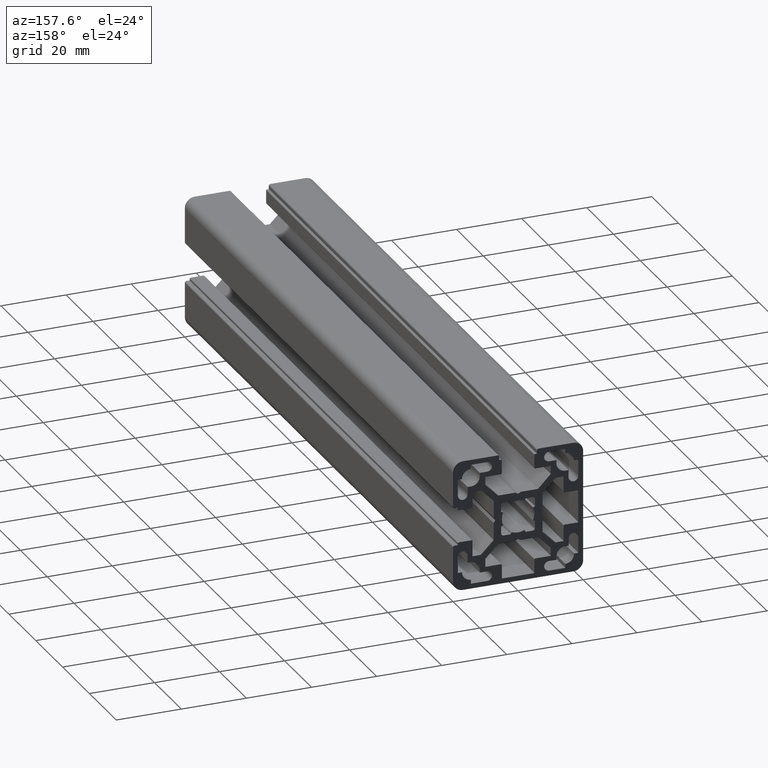
[diagram: clean part render]
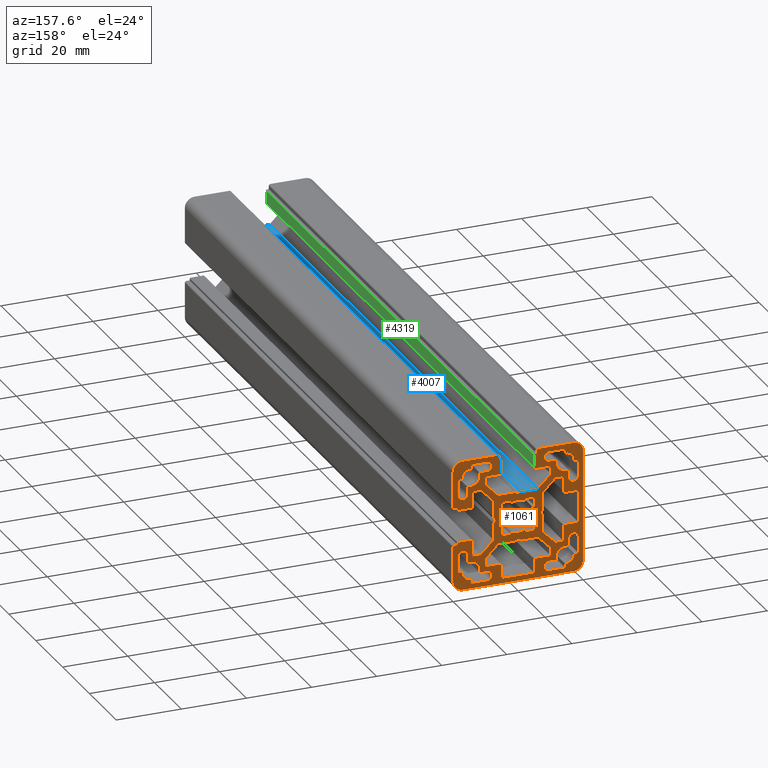
[diagram: same view with three faces highlighted in distinct colors, each labeled with its STEP entity id]
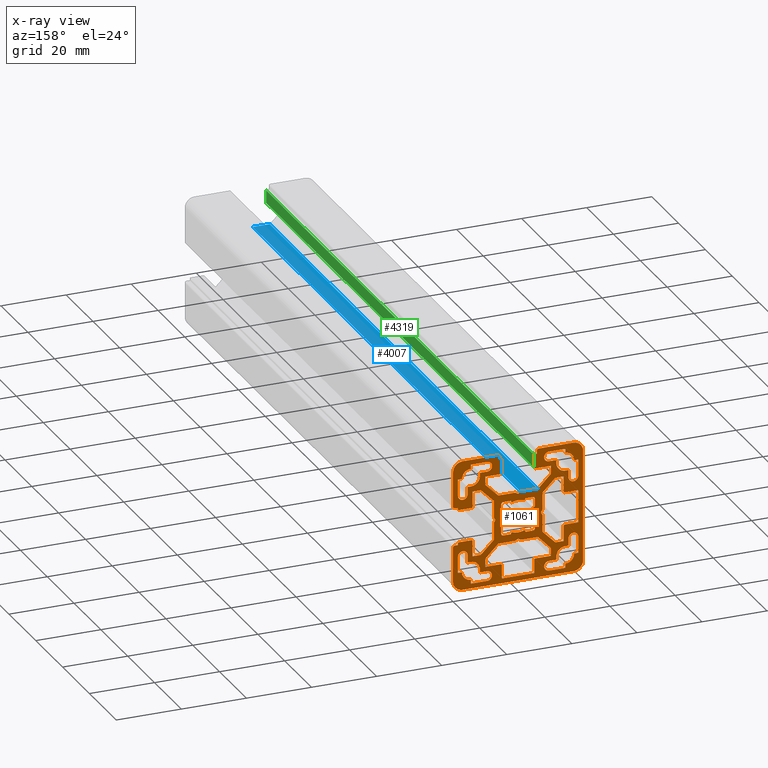
[diagram: x-ray of the same camera — body ghosted, the three highlighted faces saturated]
A machine part, auxiliary view with three faces highlighted in distinct colors.
The next image is the same camera in x-ray (body ghosted, the three faces saturated) — at least one of them is partly hidden behind the body in this view.
Their STEP definitions:

[orange] entity #1061 — the highlighted planar face has unit normal (0, 1, 0).
#6 = VECTOR ( 'NONE', #1865, 1000.000000000000000 ) ;
#8 = CARTESIAN_POINT ( 'NONE',  ( 4.500000000000169600, 200.0000000000000000, -4.500000000001059600 ) ) ;
#10 = DIRECTION ( 'NONE',  ( 1.000000000000000000, 0.0000000000000000000, -0.0000000000000000000 ) ) ;
#14 = EDGE_CURVE ( 'NONE', #4845, #2884, #1167, .T. ) ;
#15 = DIRECTION ( 'NONE',  ( 0.0000000000000000000, 0.0000000000000000000, 1.000000000000000000 ) ) ;
#16 = VECTOR ( 'NONE', #2602, 1000.000000000000000 ) ;
#18 = LINE ( 'NONE', #4253, #479 ) ;
#23 = VERTEX_POINT ( 'NONE', #2234 ) ;
#26 = EDGE_CURVE ( 'NONE', #3366, #454, #4641, .T. ) ;
#34 = CARTESIAN_POINT ( 'NONE',  ( -11.75000000000012400, 200.0000000000000000, -14.49999999999910100 ) ) ;
#44 = VERTEX_POINT ( 'NONE', #4011 ) ;
#45 = EDGE_CURVE ( 'NONE', #1788, #4038, #3474, .T. ) ;
#58 = CARTESIAN_POINT ( 'NONE',  ( 18.50000000000000000, 200.0000000000000000, -14.50000000000000000 ) ) ;
#60 = VERTEX_POINT ( 'NONE', #2274 ) ;
#61 = VERTEX_POINT ( 'NONE', #1804 ) ;
#64 = DIRECTION ( 'NONE',  ( -0.3996526269790793300, 0.0000000000000000000, -0.9166666666508174200 ) ) ;
#78 = AXIS2_PLACEMENT_3D ( 'NONE', #5032, #5464, #2868 ) ;
#86 = CARTESIAN_POINT ( 'NONE',  ( 7.499889978929809700, 200.0000000000000000, 6.085676416529569400 ) ) ;
#92 = EDGE_CURVE ( 'NONE', #2957, #3130, #974, .T. ) ;
#95 = VECTOR ( 'NONE', #3439, 1000.000000000000000 ) ;
#98 = LINE ( 'NONE', #3068, #1506 ) ;
#100 = VECTOR ( 'NONE', #1618, 1000.000000000000000 ) ;
#101 = CARTESIAN_POINT ( 'NONE',  ( -14.50000000000040000, 200.0000000000000000, -14.49999999999910100 ) ) ;
#104 = VECTOR ( 'NONE', #2369, 1000.000000000000000 ) ;
#107 = DIRECTION ( 'NONE',  ( -1.000000000000000000, -0.0000000000000000000, 0.0000000000000000000 ) ) ;
#112 = DIRECTION ( 'NONE',  ( 0.7071067811865519000, 0.0000000000000000000, -0.7071067811865431300 ) ) ;
#113 = AXIS2_PLACEMENT_3D ( 'NONE', #2861, #4140, #2896 ) ;
#114 = ORIENTED_EDGE ( 'NONE', *, *, #2142, .T. ) ;
#115 = ORIENTED_EDGE ( 'NONE', *, *, #3849, .T. ) ;
#134 = CARTESIAN_POINT ( 'NONE',  ( -5.199999999999869600, 200.0000000000000000, 2.267120356504110000 ) ) ;
#137 = CARTESIAN_POINT ( 'NONE',  ( 7.499889978929809700, 200.0000000000000000, -6.085676416530460200 ) ) ;
#156 = CARTESIAN_POINT ( 'NONE',  ( 5.199999999999869600, 200.0000000000000000, 2.267120356504110000 ) ) ;
#159 = CARTESIAN_POINT ( 'NONE',  ( 7.499889978929809700, 200.0000000000000000, 0.8660254037833310400 ) ) ;
#161 = CIRCLE ( 'NONE', #3044, 0.3000000000010771800 ) ;
#181 = ORIENTED_EDGE ( 'NONE', *, *, #1666, .F. ) ;
#182 = EDGE_CURVE ( 'NONE', #4038, #1059, #1040, .T. ) ;
#183 = CARTESIAN_POINT ( 'NONE',  ( 7.499889978929809700, 200.0000000000000000, 0.8660254037833308200 ) ) ;
#189 = VERTEX_POINT ( 'NONE', #4484 ) ;
#195 = DIRECTION ( 'NONE',  ( -0.0000000000000000000, -1.000000000000000000, -0.0000000000000000000 ) ) ;
#196 = AXIS2_PLACEMENT_3D ( 'NONE', #2293, #5320, #2745 ) ;
#197 = VERTEX_POINT ( 'NONE', #2900 ) ;
#199 = CARTESIAN_POINT ( 'NONE',  ( 2.664535259100380100E-014, 200.0000000000000000, 7.499889978929809700 ) ) ;
#205 = VERTEX_POINT ( 'NONE', #2016 ) ;
#206 = VECTOR ( 'NONE', #1633, 1000.000000000000000 ) ;
#208 = VERTEX_POINT ( 'NONE', #3320 ) ;
#215 = EDGE_LOOP ( 'NONE', ( #4581, #5248, #4281, #3644, #4587, #3963, #1916, #1651, #1511, #926, #3486, #4796, #4443, #5123, #4272, #2205, #4704 ) ) ;
#217 = CARTESIAN_POINT ( 'NONE',  ( -17.25000000000065000, 200.0000000000000000, -14.50000000000040100 ) ) ;
#218 = LINE ( 'NONE', #446, #4133 ) ;
#225 = LINE ( 'NONE', #199, #2042 ) ;
#227 = AXIS2_PLACEMENT_3D ( 'NONE', #2626, #3052, #463 ) ;
#239 = VERTEX_POINT ( 'NONE', #1984 ) ;
#240 = AXIS2_PLACEMENT_3D ( 'NONE', #4706, #2102, #4722 ) ;
#241 = CARTESIAN_POINT ( 'NONE',  ( -4.999966670000239900, 200.0000000000000000, 18.19999999999760100 ) ) ;
#251 = DIRECTION ( 'NONE',  ( 0.0000000000000000000, 0.0000000000000000000, 1.000000000000000000 ) ) ;
#254 = CARTESIAN_POINT ( 'NONE',  ( 2.664535259100380100E-014, 200.0000000000000000, -15.50000000000030000 ) ) ;
#256 = CARTESIAN_POINT ( 'NONE',  ( 2.664535259100380100E-014, 200.0000000000000000, -14.50000000000000000 ) ) ;
#262 = ORIENTED_EDGE ( 'NONE', *, *, #2846, .T. ) ;
#264 = ORIENTED_EDGE ( 'NONE', *, *, #326, .T. ) ;
#266 = CARTESIAN_POINT ( 'NONE',  ( 17.00000000000000000, 200.0000000000000000, -9.500000000000000000 ) ) ;
#268 = AXIS2_PLACEMENT_3D ( 'NONE', #1783, #3066, #480 ) ;
#270 = LINE ( 'NONE', #803, #2907 ) ;
#272 = DIRECTION ( 'NONE',  ( 0.0000000000000000000, 0.0000000000000000000, 1.000000000000000000 ) ) ;
#277 = VECTOR ( 'NONE', #4044, 1000.000000000000000 ) ;
#293 = DIRECTION ( 'NONE',  ( -2.891205793284297200E-015, 0.0000000000000000000, 1.000000000000000000 ) ) ;
#295 = LINE ( 'NONE', #2480, #4095 ) ;
#305 = CARTESIAN_POINT ( 'NONE',  ( 10.05015266879990100, 200.0000000000000000, 13.99999999999930200 ) ) ;
#308 = EDGE_CURVE ( 'NONE', #2622, #1120, #161, .T. ) ;
#313 = VERTEX_POINT ( 'NONE', #4616 ) ;
#316 = ORIENTED_EDGE ( 'NONE', *, *, #2629, .T. ) ;
#324 = VECTOR ( 'NONE', #2436, 1000.000000000000000 ) ;
#326 = EDGE_CURVE ( 'NONE', #844, #928, #3127, .T. ) ;
#331 = CIRCLE ( 'NONE', #5473, 0.6999999999997008600 ) ;
#336 = CIRCLE ( 'NONE', #4172, 0.3000000000010771800 ) ;
#338 = VECTOR ( 'NONE', #2304, 1000.000000000000000 ) ;
#341 = DIRECTION ( 'NONE',  ( -0.0000000000000000000, 0.0000000000000000000, -1.000000000000000000 ) ) ;
#342 = CIRCLE ( 'NONE', #1630, 0.1999999999986457100 ) ;
#347 = VECTOR ( 'NONE', #3521, 999.9999999999998900 ) ;
#349 = DIRECTION ( 'NONE',  ( 0.0000000000000000000, 0.0000000000000000000, 1.000000000000000000 ) ) ;
#350 = ORIENTED_EDGE ( 'NONE', *, *, #987, .T. ) ;
#354 = CIRCLE ( 'NONE', #227, 2.749999999999809900 ) ;
#355 = LINE ( 'NONE', #2953, #2805 ) ;
#356 = CIRCLE ( 'NONE', #3721, 4.999999999997131200 ) ;
#358 = DIRECTION ( 'NONE',  ( 1.000000000000000000, 0.0000000000000000000, -0.0000000000000000000 ) ) ;
#360 = EDGE_CURVE ( 'NONE', #3370, #3090, #4699, .T. ) ;
#361 = AXIS2_PLACEMENT_3D ( 'NONE', #709, #4165, #765 ) ;
#366 = ORIENTED_EDGE ( 'NONE', *, *, #4797, .T. ) ;
#367 = ORIENTED_EDGE ( 'NONE', *, *, #631, .T. ) ;
#368 = EDGE_CURVE ( 'NONE', #1038, #787, #355, .T. ) ;
#375 = VERTEX_POINT ( 'NONE', #3799 ) ;
#384 = DIRECTION ( 'NONE',  ( 0.0000000000000000000, -0.0000000000000000000, 1.000000000000000000 ) ) ;
#401 = DIRECTION ( 'NONE',  ( 0.0000000000000000000, 0.0000000000000000000, 1.000000000000000000 ) ) ;
#402 = LINE ( 'NONE', #3189, #4887 ) ;
#403 = VECTOR ( 'NONE', #2736, 1000.000000000000000 ) ;
#405 = CARTESIAN_POINT ( 'NONE',  ( 18.50000000000000000, 200.0000000000000000, -5.800033329999910100 ) ) ;
#418 = CARTESIAN_POINT ( 'NONE',  ( -5.200000000000319900, 200.0000000000000000, -1.776356839400250000E-013 ) ) ;
#422 = FACE_BOUND ( 'NONE', #1391, .T. ) ;
#423 = EDGE_LOOP ( 'NONE', ( #3355, #3169, #4909, #1250, #5029, #2542, #2344, #1409, #4947, #3784, #4575, #114 ) ) ;
#432 = DIRECTION ( 'NONE',  ( 0.0000000000000000000, 1.000000000000000000, 0.0000000000000000000 ) ) ;
#442 = EDGE_CURVE ( 'NONE', #3575, #2085, #3469, .T. ) ;
#443 = CARTESIAN_POINT ( 'NONE',  ( 1.507417055104778800E-015, 200.0000000000000000, 6.999889978929200400 ) ) ;
#446 = CARTESIAN_POINT ( 'NONE',  ( 5.199999999999869600, 200.0000000000000000, -2.267120356505000000 ) ) ;
#447 = CARTESIAN_POINT ( 'NONE',  ( 17.00000000000020300, 200.0000000000000000, -20.00000000000050100 ) ) ;
#450 = ORIENTED_EDGE ( 'NONE', *, *, #360, .F. ) ;
#454 = VERTEX_POINT ( 'NONE', #3426 ) ;
#456 = EDGE_CURVE ( 'NONE', #1714, #2598, #2266, .T. ) ;
#463 = DIRECTION ( 'NONE',  ( 0.0000000000000000000, 0.0000000000000000000, 1.000000000000000000 ) ) ;
#468 = VECTOR ( 'NONE', #1074, 1000.000000000000000 ) ;
#470 = DIRECTION ( 'NONE',  ( 0.0000000000000000000, 0.0000000000000000000, 1.000000000000000000 ) ) ;
#479 = VECTOR ( 'NONE', #10, 1000.000000000000000 ) ;
#480 = DIRECTION ( 'NONE',  ( 0.0000000000000000000, 0.0000000000000000000, 1.000000000000000000 ) ) ;
#485 = EDGE_CURVE ( 'NONE', #4524, #1404, #3691, .T. ) ;
#489 = LINE ( 'NONE', #2537, #5377 ) ;
#502 = ORIENTED_EDGE ( 'NONE', *, *, #4726, .F. ) ;
#513 = EDGE_CURVE ( 'NONE', #1601, #2546, #5574, .T. ) ;
#525 = VERTEX_POINT ( 'NONE', #1755 ) ;
#526 = LINE ( 'NONE', #5198, #1077 ) ;
#531 = DIRECTION ( 'NONE',  ( -0.0000000000000000000, -1.000000000000000000, -0.0000000000000000000 ) ) ;
#534 = ORIENTED_EDGE ( 'NONE', *, *, #4227, .T. ) ;
#535 = LINE ( 'NONE', #1298, #2558 ) ;
#539 = EDGE_CURVE ( 'NONE', #4366, #2762, #3821, .T. ) ;
#540 = VECTOR ( 'NONE', #3889, 1000.000000000000000 ) ;
#541 = AXIS2_PLACEMENT_3D ( 'NONE', #101, #3104, #603 ) ;
#543 = DIRECTION ( 'NONE',  ( -1.000000000000000000, -0.0000000000000000000, 0.0000000000000000000 ) ) ;
#553 = VECTOR ( 'NONE', #640, 1000.000000000000000 ) ;
#556 = VECTOR ( 'NONE', #3830, 1000.000000000000000 ) ;
#559 = VERTEX_POINT ( 'NONE', #2244 ) ;
#562 = DIRECTION ( 'NONE',  ( -0.7071067811864618600, 0.0000000000000000000, 0.7071067811866331700 ) ) ;
#565 = FACE_OUTER_BOUND ( 'NONE', #4694, .T. ) ;
#569 = CARTESIAN_POINT ( 'NONE',  ( 2.664535259100380100E-014, 200.0000000000000000, 4.999966669998910300 ) ) ;
#573 = CARTESIAN_POINT ( 'NONE',  ( -11.46429957120039900, 200.0000000000000000, -10.05008600879970100 ) ) ;
#574 = CARTESIAN_POINT ( 'NONE',  ( 4.799966670001600400, 200.0000000000000000, -18.30000000000169900 ) ) ;
#575 = CARTESIAN_POINT ( 'NONE',  ( -15.50000000000000000, 200.0000000000000000, 9.500000000000000000 ) ) ;
#577 = VERTEX_POINT ( 'NONE', #889 ) ;
#578 = VERTEX_POINT ( 'NONE', #58 ) ;
#591 = VERTEX_POINT ( 'NONE', #1399 ) ;
#598 = VERTEX_POINT ( 'NONE', #4005 ) ;
#601 = VERTEX_POINT ( 'NONE', #5310 ) ;
#603 = DIRECTION ( 'NONE',  ( 0.0000000000000000000, 0.0000000000000000000, 1.000000000000000000 ) ) ;
#606 = VECTOR ( 'NONE', #2824, 1000.000000000000000 ) ;
#611 = CARTESIAN_POINT ( 'NONE',  ( 20.00000000000006000, 200.0000000000000000, -17.00000000000040100 ) ) ;
#617 = CARTESIAN_POINT ( 'NONE',  ( -9.500000000000000000, 200.0000000000000000, 18.49999999999949900 ) ) ;
#621 = VECTOR ( 'NONE', #3218, 1000.000000000000000 ) ;
#622 = AXIS2_PLACEMENT_3D ( 'NONE', #651, #4577, #2812 ) ;
#624 = CARTESIAN_POINT ( 'NONE',  ( 5.300033330000180100, 200.0000000000000000, 18.49999999999949900 ) ) ;
#631 = EDGE_CURVE ( 'NONE', #1877, #2794, #3200, .T. ) ;
#638 = CARTESIAN_POINT ( 'NONE',  ( 15.50000000000000000, 200.0000000000000000, -1.776356839400250000E-013 ) ) ;
#640 = DIRECTION ( 'NONE',  ( -0.0000000000000000000, -0.0000000000000000000, 1.000000000000000000 ) ) ;
#641 = ORIENTED_EDGE ( 'NONE', *, *, #5315, .T. ) ;
#642 = VERTEX_POINT ( 'NONE', #1416 ) ;
#644 = DIRECTION ( 'NONE',  ( -0.0000000000000000000, -1.000000000000000000, -0.0000000000000000000 ) ) ;
#649 = ORIENTED_EDGE ( 'NONE', *, *, #4948, .F. ) ;
#651 = CARTESIAN_POINT ( 'NONE',  ( -4.500000000000169600, 200.0000000000000000, -4.500000000001059600 ) ) ;
#652 = DIRECTION ( 'NONE',  ( 0.0000000000000000000, 0.0000000000000000000, 1.000000000000000000 ) ) ;
#662 = ORIENTED_EDGE ( 'NONE', *, *, #4198, .T. ) ;
#661 = EDGE_CURVE ( 'NONE', #1539, #4366, #4496, .T. ) ;
#669 = VECTOR ( 'NONE', #5565, 1000.000000000000000 ) ;
#670 = AXIS2_PLACEMENT_3D ( 'NONE', #1451, #4493, #2767 ) ;
#674 = LINE ( 'NONE', #4138, #2840 ) ;
#677 = CARTESIAN_POINT ( 'NONE',  ( 14.50000000000080100, 200.0000000000000000, -14.49999999999910100 ) ) ;
#680 = VECTOR ( 'NONE', #3716, 1000.000000000000000 ) ;
#684 = EDGE_CURVE ( 'NONE', #5569, #1323, #3342, .T. ) ;
#705 = ORIENTED_EDGE ( 'NONE', *, *, #1905, .T. ) ;
#706 = CARTESIAN_POINT ( 'NONE',  ( 11.75000000000012400, 200.0000000000000000, 14.49999999999910100 ) ) ;
#709 = CARTESIAN_POINT ( 'NONE',  ( -17.00000000000000000, 200.0000000000000000, 16.99999999999940000 ) ) ;
#710 = DIRECTION ( 'NONE',  ( 0.0000000000000000000, -0.0000000000000000000, 1.000000000000000000 ) ) ;
#722 = LINE ( 'NONE', #3918, #1878 ) ;
#727 = VERTEX_POINT ( 'NONE', #5389 ) ;
#729 = DIRECTION ( 'NONE',  ( -1.000000000000000000, -0.0000000000000000000, 0.0000000000000000000 ) ) ;
#734 = LINE ( 'NONE', #4062, #5203 ) ;
#738 = CIRCLE ( 'NONE', #2655, 2.749999999999809900 ) ;
#746 = VECTOR ( 'NONE', #5218, 1000.000000000000000 ) ;
#756 = AXIS2_PLACEMENT_3D ( 'NONE', #1013, #5356, #3534 ) ;
#758 = ORIENTED_EDGE ( 'NONE', *, *, #3971, .T. ) ;
#765 = DIRECTION ( 'NONE',  ( 0.0000000000000000000, 0.0000000000000000000, 1.000000000000000000 ) ) ;
#766 = CARTESIAN_POINT ( 'NONE',  ( 18.50000000000000000, 200.0000000000000000, -1.776356839400250000E-013 ) ) ;
#767 = ORIENTED_EDGE ( 'NONE', *, *, #4583, .T. ) ;
#778 = CARTESIAN_POINT ( 'NONE',  ( -14.30000000000134900, 200.0000000000000000, -4.999966670000690200 ) ) ;
#787 = VERTEX_POINT ( 'NONE', #183 ) ;
#789 = CARTESIAN_POINT ( 'NONE',  ( 2.664535259100380100E-014, 200.0000000000000000, -4.999966670001580100 ) ) ;
#793 = EDGE_CURVE ( 'NONE', #980, #5607, #1502, .T. ) ;
#795 = VECTOR ( 'NONE', #107, 1000.000000000000000 ) ;
#803 = CARTESIAN_POINT ( 'NONE',  ( 2.664535259100380100E-014, 200.0000000000000000, -7.499889978929809700 ) ) ;
#804 = CARTESIAN_POINT ( 'NONE',  ( 5.199999999999869600, 200.0000000000000000, -2.267120356505000000 ) ) ;
#811 = LINE ( 'NONE', #5408, #5503 ) ;
#813 = CARTESIAN_POINT ( 'NONE',  ( 20.00000000000000000, 200.0000000000000000, -1.776356839400250000E-013 ) ) ;
#817 = AXIS2_PLACEMENT_3D ( 'NONE', #1015, #195, #4950 ) ;
#821 = VECTOR ( 'NONE', #4019, 1000.000000000000100 ) ;
#826 = EDGE_CURVE ( 'NONE', #1251, #1117, #4355, .T. ) ;
#830 = CARTESIAN_POINT ( 'NONE',  ( 4.500000000000169600, 200.0000000000000000, 5.199999999999429100 ) ) ;
#831 = VERTEX_POINT ( 'NONE', #2400 ) ;
#836 = DIRECTION ( 'NONE',  ( -0.0000000000000000000, 0.0000000000000000000, -1.000000000000000000 ) ) ;
#837 = CARTESIAN_POINT ( 'NONE',  ( -14.30000000000040000, 200.0000000000000000, 5.000033329999104700 ) ) ;
#841 = CARTESIAN_POINT ( 'NONE',  ( -5.199999999999869600, 200.0000000000000000, 2.267120356504110000 ) ) ;
#844 = VERTEX_POINT ( 'NONE', #2418 ) ;
#849 = CARTESIAN_POINT ( 'NONE',  ( -14.50000000000000000, 200.0000000000000000, -1.776356839400250000E-013 ) ) ;
#856 = CARTESIAN_POINT ( 'NONE',  ( 14.30000000000000100, 200.0000000000000000, -5.300033330001060200 ) ) ;
#858 = ORIENTED_EDGE ( 'NONE', *, *, #3158, .T. ) ;
#863 = CARTESIAN_POINT ( 'NONE',  ( -5.199999999999869600, 200.0000000000000000, 4.500000000000169600 ) ) ;
#879 = EDGE_CURVE ( 'NONE', #313, #5176, #4692, .T. ) ;
#883 = CARTESIAN_POINT ( 'NONE',  ( 0.0000000000000000000, 200.0000000000000000, 0.0000000000000000000 ) ) ;
#884 = LINE ( 'NONE', #2573, #5561 ) ;
#888 = ORIENTED_EDGE ( 'NONE', *, *, #2906, .T. ) ;
#889 = CARTESIAN_POINT ( 'NONE',  ( -5.000033329999990200, 200.0000000000000000, -14.30000000000220000 ) ) ;
#890 = CIRCLE ( 'NONE', #2643, 0.5000000000001669800 ) ;
#894 = ORIENTED_EDGE ( 'NONE', *, *, #3112, .F. ) ;
#895 = CIRCLE ( 'NONE', #1966, 4.999999999998750300 ) ;
#897 = CARTESIAN_POINT ( 'NONE',  ( -14.30000000000129900, 200.0000000000000000, -5.299966670000880100 ) ) ;
#917 = DIRECTION ( 'NONE',  ( 0.0000000000000000000, 0.0000000000000000000, 1.000000000000000000 ) ) ;
#920 = DIRECTION ( 'NONE',  ( -0.0000000000000000000, 0.0000000000000000000, -1.000000000000000000 ) ) ;
#926 = ORIENTED_EDGE ( 'NONE', *, *, #5207, .T. ) ;
#927 = CARTESIAN_POINT ( 'NONE',  ( -7.499889978929809700, 200.0000000000000000, -1.776356839400250000E-013 ) ) ;
#928 = VERTEX_POINT ( 'NONE', #804 ) ;
#933 = EDGE_CURVE ( 'NONE', #3290, #5569, #2406, .T. ) ;
#934 = AXIS2_PLACEMENT_3D ( 'NONE', #1233, #1283, #15 ) ;
#947 = CIRCLE ( 'NONE', #196, 0.1999999999995338800 ) ;
#950 = DIRECTION ( 'NONE',  ( -1.000000000000000000, -0.0000000000000000000, 0.0000000000000000000 ) ) ;
#962 = ORIENTED_EDGE ( 'NONE', *, *, #1135, .T. ) ;
#966 = LINE ( 'NONE', #766, #4981 ) ;
#968 = FACE_BOUND ( 'NONE', #2495, .T. ) ;
#974 = LINE ( 'NONE', #134, #4765 ) ;
#980 = VERTEX_POINT ( 'NONE', #4305 ) ;
#983 = CARTESIAN_POINT ( 'NONE',  ( 0.0000000000000000000, 200.0000000000000000, 0.0000000000000000000 ) ) ;
#984 = CARTESIAN_POINT ( 'NONE',  ( -18.50000000000000000, 200.0000000000000000, 4.800033330000450100 ) ) ;
#987 = EDGE_CURVE ( 'NONE', #525, #1005, #356, .T. ) ;
#989 = CARTESIAN_POINT ( 'NONE',  ( 5.800033329999910100, 200.0000000000000000, 18.49999999999949900 ) ) ;
#1002 = DIRECTION ( 'NONE',  ( 1.000000000000000000, 0.0000000000000000000, -0.0000000000000000000 ) ) ;
#1004 = CARTESIAN_POINT ( 'NONE',  ( -2.267120356504559500, 200.0000000000000000, 5.199999999999429100 ) ) ;
#1005 = VERTEX_POINT ( 'NONE', #1751 ) ;
#1007 = ORIENTED_EDGE ( 'NONE', *, *, #3246, .T. ) ;
#1011 = CARTESIAN_POINT ( 'NONE',  ( 11.75000000000009900, 200.0000000000000000, 15.49999999999940000 ) ) ;
#1013 = CARTESIAN_POINT ( 'NONE',  ( 9.500000000000000000, 200.0000000000000000, 16.99999999999940000 ) ) ;
#1015 = CARTESIAN_POINT ( 'NONE',  ( 0.0000000000000000000, 200.0000000000000000, 0.0000000000000000000 ) ) ;
#1016 = VECTOR ( 'NONE', #543, 1000.000000000000000 ) ;
#1018 = EDGE_CURVE ( 'NONE', #205, #1525, #4840, .T. ) ;
#1027 = CARTESIAN_POINT ( 'NONE',  ( 2.664535259100380100E-014, 200.0000000000000000, -7.499889978929809700 ) ) ;
#1028 = EDGE_CURVE ( 'NONE', #727, #844, #2530, .T. ) ;
#1030 = VECTOR ( 'NONE', #4490, 1000.000000000000000 ) ;
#1033 = VECTOR ( 'NONE', #1105, 1000.000000000000000 ) ;
#1038 = VERTEX_POINT ( 'NONE', #86 ) ;
#1040 = LINE ( 'NONE', #4922, #104 ) ;
#1044 = DIRECTION ( 'NONE',  ( -0.0000000000000000000, -1.000000000000000000, -0.0000000000000000000 ) ) ;
#1046 = VERTEX_POINT ( 'NONE', #2610 ) ;
#1049 = CARTESIAN_POINT ( 'NONE',  ( 19.50000000000000000, 200.0000000000000000, 5.799966669999713900 ) ) ;
#1059 = VERTEX_POINT ( 'NONE', #447 ) ;
#1061 = ADVANCED_FACE ( 'NONE', ( #2331, #3129, #5309, #968, #422, #1435, #5443, #565 ), #3056, .T. ) ;
#1066 = DIRECTION ( 'NONE',  ( 0.0000000000000000000, 0.0000000000000000000, 1.000000000000000000 ) ) ;
#1067 = CARTESIAN_POINT ( 'NONE',  ( -11.46436623120020200, 200.0000000000000000, 10.05015266879990100 ) ) ;
#1069 = DIRECTION ( 'NONE',  ( 1.000000000000000000, 0.0000000000000000000, -0.0000000000000000000 ) ) ;
#1071 = ORIENTED_EDGE ( 'NONE', *, *, #5174, .T. ) ;
#1072 = EDGE_CURVE ( 'NONE', #2486, #5327, #3401, .T. ) ;
#1074 = DIRECTION ( 'NONE',  ( -0.0000000000000000000, 0.0000000000000000000, -1.000000000000000000 ) ) ;
#1077 = VECTOR ( 'NONE', #1770, 1000.000000000000000 ) ;
#1081 = DIRECTION ( 'NONE',  ( -1.776356839400250500E-015, 0.0000000000000000000, 1.000000000000000000 ) ) ;
#1083 = CIRCLE ( 'NONE', #1487, 0.3000000000010771800 ) ;
#1101 = DIRECTION ( 'NONE',  ( 1.000000000000000000, 0.0000000000000000000, -0.0000000000000000000 ) ) ;
#1105 = DIRECTION ( 'NONE',  ( -1.000000000000000000, -0.0000000000000000000, -4.507505479978130000E-013 ) ) ;
#1112 = VERTEX_POINT ( 'NONE', #1004 ) ;
#1117 = VERTEX_POINT ( 'NONE', #984 ) ;
#1118 = CARTESIAN_POINT ( 'NONE',  ( 5.000033329999990200, 200.0000000000000000, 18.19999999999850400 ) ) ;
#1119 = DIRECTION ( 'NONE',  ( -0.7071067811865020500, 0.0000000000000000000, -0.7071067811865929800 ) ) ;
#1120 = VERTEX_POINT ( 'NONE', #3197 ) ;
#1121 = VERTEX_POINT ( 'NONE', #3618 ) ;
#1128 = CARTESIAN_POINT ( 'NONE',  ( 2.664535259100380100E-014, 200.0000000000000000, -14.00000000000020100 ) ) ;
#1134 = VECTOR ( 'NONE', #2177, 1000.000000000000000 ) ;
#1135 = EDGE_CURVE ( 'NONE', #4977, #1601, #1694, .T. ) ;
#1138 = ORIENTED_EDGE ( 'NONE', *, *, #2808, .T. ) ;
#1140 = ORIENTED_EDGE ( 'NONE', *, *, #3607, .F. ) ;
#1144 = CARTESIAN_POINT ( 'NONE',  ( 2.664535259100380100E-014, 200.0000000000000000, 14.50000000000000000 ) ) ;
#1158 = CIRCLE ( 'NONE', #2707, 0.3000000000001890000 ) ;
#1160 = EDGE_CURVE ( 'NONE', #2472, #2295, #5103, .T. ) ;
#1162 = VECTOR ( 'NONE', #920, 1000.000000000000000 ) ;
#1165 = VERTEX_POINT ( 'NONE', #1896 ) ;
#1167 = CIRCLE ( 'NONE', #268, 0.6999999999992567700 ) ;
#1170 = CARTESIAN_POINT ( 'NONE',  ( 2.664535259100380100E-014, 200.0000000000000000, 13.99999999999930200 ) ) ;
#1173 = EDGE_CURVE ( 'NONE', #1808, #3909, #2807, .T. ) ;
#1193 = VERTEX_POINT ( 'NONE', #3109 ) ;
#1196 = DIRECTION ( 'NONE',  ( -0.0000000000000000000, -1.000000000000000000, -0.0000000000000000000 ) ) ;
#1197 = ORIENTED_EDGE ( 'NONE', *, *, #1268, .T. ) ;
#1203 = EDGE_CURVE ( 'NONE', #5120, #208, #4024, .T. ) ;
#1205 = VECTOR ( 'NONE', #4560, 1000.000000000000100 ) ;
#1206 = DIRECTION ( 'NONE',  ( 0.0000000000000000000, -0.0000000000000000000, 1.000000000000000000 ) ) ;
#1220 = LINE ( 'NONE', #4261, #4338 ) ;
#1222 = CARTESIAN_POINT ( 'NONE',  ( 5.000033329999990200, 200.0000000000000000, -1.776356839400250000E-013 ) ) ;
#1223 = CARTESIAN_POINT ( 'NONE',  ( 2.664535259100380100E-014, 200.0000000000000000, 15.49999999999940000 ) ) ;
#1225 = DIRECTION ( 'NONE',  ( -1.000000000000000000, -0.0000000000000000000, 0.0000000000000000000 ) ) ;
#1229 = ORIENTED_EDGE ( 'NONE', *, *, #5459, .T. ) ;
#1233 = CARTESIAN_POINT ( 'NONE',  ( 9.500000000000000000, 200.0000000000000000, -17.00000000000040100 ) ) ;
#1237 = EDGE_CURVE ( 'NONE', #4287, #2555, #3613, .T. ) ;
#1240 = DIRECTION ( 'NONE',  ( -0.0000000000000000000, -1.000000000000000000, -0.0000000000000000000 ) ) ;
#1241 = ORIENTED_EDGE ( 'NONE', *, *, #368, .T. ) ;
#1250 = ORIENTED_EDGE ( 'NONE', *, *, #5160, .T. ) ;
#1251 = VERTEX_POINT ( 'NONE', #1700 ) ;
#1255 = ORIENTED_EDGE ( 'NONE', *, *, #3494, .T. ) ;
#1259 = CARTESIAN_POINT ( 'NONE',  ( 14.30000000000090100, 200.0000000000000000, 5.299966669999990100 ) ) ;
#1268 = EDGE_CURVE ( 'NONE', #2295, #2056, #1767, .T. ) ;
#1273 = LINE ( 'NONE', #5457, #5018 ) ;
#1274 = LINE ( 'NONE', #1027, #4546 ) ;
#1281 = LINE ( 'NONE', #5500, #2973 ) ;
#1283 = DIRECTION ( 'NONE',  ( -0.0000000000000000000, -1.000000000000000000, -0.0000000000000000000 ) ) ;
#1285 = CARTESIAN_POINT ( 'NONE',  ( 2.664535259100380100E-014, 200.0000000000000000, 5.199999999999430000 ) ) ;
#1291 = CIRCLE ( 'NONE', #2366, 2.750000000000248700 ) ;
#1298 = CARTESIAN_POINT ( 'NONE',  ( 2.664535259100380100E-014, 200.0000000000000000, -10.05008600879970100 ) ) ;
#1311 = CARTESIAN_POINT ( 'NONE',  ( -10.05015266879990100, 200.0000000000000000, -1.776356839400250000E-013 ) ) ;
#1312 = DIRECTION ( 'NONE',  ( -0.0000000000000000000, -1.000000000000000000, -0.0000000000000000000 ) ) ;
#1318 = DIRECTION ( 'NONE',  ( -0.0000000000000000000, -1.000000000000000000, -0.0000000000000000000 ) ) ;
#1323 = VERTEX_POINT ( 'NONE', #3459 ) ;
#1329 = CARTESIAN_POINT ( 'NONE',  ( 2.664535259100380100E-014, 200.0000000000000000, -18.49999999999949900 ) ) ;
#1335 = CARTESIAN_POINT ( 'NONE',  ( 2.664535259100380100E-014, 200.0000000000000000, -1.776356839400250000E-013 ) ) ;
#1341 = DIRECTION ( 'NONE',  ( 0.0000000000000000000, -0.0000000000000000000, 1.000000000000000000 ) ) ;
#1364 = VERTEX_POINT ( 'NONE', #2588 ) ;
#1371 = EDGE_CURVE ( 'NONE', #3690, #5546, #1503, .T. ) ;
#1374 = ORIENTED_EDGE ( 'NONE', *, *, #4539, .T. ) ;
#1388 = EDGE_CURVE ( 'NONE', #2235, #4901, #3269, .T. ) ;
#1391 = EDGE_LOOP ( 'NONE', ( #3622, #1138, #1229, #4664, #858, #115, #5517, #264, #4741, #767, #962, #2301, #3285, #4451, #2988, #662, #350, #2000, #4442, #1736, #3221, #5592, #705, #4340, #5446 ) ) ;
#1392 = CARTESIAN_POINT ( 'NONE',  ( -5.200000000000095200, 200.0000000000000000, -4.500000000001129800 ) ) ;
#1395 = VERTEX_POINT ( 'NONE', #2710 ) ;
#1399 = CARTESIAN_POINT ( 'NONE',  ( -14.50000000000040100, 200.0000000000000000, 17.24999999999981200 ) ) ;
#1404 = VERTEX_POINT ( 'NONE', #1392 ) ;
#1406 = EDGE_CURVE ( 'NONE', #1936, #1807, #489, .T. ) ;
#1409 = ORIENTED_EDGE ( 'NONE', *, *, #2349, .T. ) ;
#1416 = CARTESIAN_POINT ( 'NONE',  ( 9.500000000000000000, 200.0000000000000000, -18.50000000000040100 ) ) ;
#1418 = LINE ( 'NONE', #1902, #338 ) ;
#1420 = EDGE_CURVE ( 'NONE', #1364, #4524, #2187, .T. ) ;
#1435 = FACE_BOUND ( 'NONE', #215, .T. ) ;
#1436 = CARTESIAN_POINT ( 'NONE',  ( 2.664535259100380100E-014, 200.0000000000000000, 11.74999999999879900 ) ) ;
#1437 = CARTESIAN_POINT ( 'NONE',  ( -18.50000000000000000, 200.0000000000000000, -9.500000000000000000 ) ) ;
#1447 = ORIENTED_EDGE ( 'NONE', *, *, #3124, .T. ) ;
#1449 = CARTESIAN_POINT ( 'NONE',  ( 4.999966670000239900, 200.0000000000000000, -1.776356839400250000E-013 ) ) ;
#1451 = CARTESIAN_POINT ( 'NONE',  ( 17.00000000000000000, 200.0000000000000000, 9.500000000000000000 ) ) ;
#1463 = CARTESIAN_POINT ( 'NONE',  ( 2.664535259100380100E-014, 200.0000000000000000, 15.49999999999940000 ) ) ;
#1471 = ORIENTED_EDGE ( 'NONE', *, *, #4483, .T. ) ;
#1474 = LINE ( 'NONE', #4631, #324 ) ;
#1479 = DIRECTION ( 'NONE',  ( 0.0000000000000000000, 0.0000000000000000000, 1.000000000000000000 ) ) ;
#1481 = LINE ( 'NONE', #1515, #1205 ) ;
#1486 = VECTOR ( 'NONE', #4689, 1000.000000000000000 ) ;
#1487 = AXIS2_PLACEMENT_3D ( 'NONE', #4673, #3429, #4707 ) ;
#1488 = CARTESIAN_POINT ( 'NONE',  ( -6.085676416530020600, 200.0000000000000000, -7.499889978929809700 ) ) ;
#1491 = DIRECTION ( 'NONE',  ( 0.0000000000000000000, -0.0000000000000000000, 1.000000000000000000 ) ) ;
#1492 = LINE ( 'NONE', #4456, #403 ) ;
#1499 = VERTEX_POINT ( 'NONE', #1488 ) ;
#1501 = DIRECTION ( 'NONE',  ( -0.0000000000000000000, -1.000000000000000000, -0.0000000000000000000 ) ) ;
#1502 = LINE ( 'NONE', #254, #5384 ) ;
#1503 = LINE ( 'NONE', #1669, #95 ) ;
#1506 = VECTOR ( 'NONE', #3933, 1000.000000000000000 ) ;
#1511 = ORIENTED_EDGE ( 'NONE', *, *, #456, .F. ) ;
#1512 = ORIENTED_EDGE ( 'NONE', *, *, #1879, .T. ) ;
#1515 = CARTESIAN_POINT ( 'NONE',  ( 6.085676416530019700, 200.0000000000000000, 7.499889978929809700 ) ) ;
#1519 = DIRECTION ( 'NONE',  ( -0.0000000000000000000, -0.0000000000000000000, 1.000000000000000000 ) ) ;
#1525 = VERTEX_POINT ( 'NONE', #2749 ) ;
#1538 = DIRECTION ( 'NONE',  ( 0.0000000000000000000, -0.0000000000000000000, 1.000000000000000000 ) ) ;
#1539 = VERTEX_POINT ( 'NONE', #5399 ) ;
#1541 = VERTEX_POINT ( 'NONE', #2806 ) ;
#1548 = EDGE_CURVE ( 'NONE', #1936, #44, #225, .T. ) ;
#1549 = VECTOR ( 'NONE', #1519, 1000.000000000000000 ) ;
#1552 = CARTESIAN_POINT ( 'NONE',  ( 6.999889978929640000, 200.0000000000000000, -1.538907116247345800E-015 ) ) ;
#1558 = CARTESIAN_POINT ( 'NONE',  ( 20.00000000000000000, 200.0000000000000000, -6.300033329999630300 ) ) ;
#1561 = LINE ( 'NONE', #5211, #2919 ) ;
#1562 = ORIENTED_EDGE ( 'NONE', *, *, #1980, .T. ) ;
#1565 = EDGE_CURVE ( 'NONE', #577, #2494, #4899, .T. ) ;
#1566 = EDGE_CURVE ( 'NONE', #239, #1541, #1620, .T. ) ;
#1585 = EDGE_CURVE ( 'NONE', #4427, #2598, #3807, .T. ) ;
#1597 = CARTESIAN_POINT ( 'NONE',  ( 18.50000000000000000, 200.0000000000000000, -5.800033329999910100 ) ) ;
#1601 = VERTEX_POINT ( 'NONE', #156 ) ;
#1603 = DIRECTION ( 'NONE',  ( 1.000000000000000000, 0.0000000000000000000, -0.0000000000000000000 ) ) ;
#1609 = CARTESIAN_POINT ( 'NONE',  ( 2.267120356504110000, 200.0000000000000000, -5.200000000000319000 ) ) ;
#1618 = DIRECTION ( 'NONE',  ( -0.0000000000000000000, 0.0000000000000000000, -1.000000000000000000 ) ) ;
#1620 = LINE ( 'NONE', #569, #1030 ) ;
#1622 = EDGE_CURVE ( 'NONE', #5034, #3366, #2458, .T. ) ;
#1630 = AXIS2_PLACEMENT_3D ( 'NONE', #3415, #5596, #4244 ) ;
#1633 = DIRECTION ( 'NONE',  ( -1.000000000000000000, -0.0000000000000000000, 0.0000000000000000000 ) ) ;
#1638 = DIRECTION ( 'NONE',  ( -0.0000000000000000000, 0.0000000000000000000, -1.000000000000000000 ) ) ;
#1651 = ORIENTED_EDGE ( 'NONE', *, *, #1585, .T. ) ;
#1652 = CARTESIAN_POINT ( 'NONE',  ( 18.19999999999890200, 200.0000000000000000, -5.000033330000880100 ) ) ;
#1653 = ORIENTED_EDGE ( 'NONE', *, *, #3347, .F. ) ;
#1662 = DIRECTION ( 'NONE',  ( -0.3996526269790871600, 0.0000000000000000000, 0.9166666666508139800 ) ) ;
#1665 = EDGE_CURVE ( 'NONE', #239, #189, #1158, .T. ) ;
#1666 = EDGE_CURVE ( 'NONE', #2235, #4827, #4756, .T. ) ;
#1669 = CARTESIAN_POINT ( 'NONE',  ( 14.50000000000000000, 200.0000000000000000, -1.776356839400250000E-013 ) ) ;
#1675 = CARTESIAN_POINT ( 'NONE',  ( -4.500000000000169600, 200.0000000000000000, 5.199999999999430000 ) ) ;
#1694 = LINE ( 'NONE', #4000, #821 ) ;
#1700 = CARTESIAN_POINT ( 'NONE',  ( -18.30000000000130100, 200.0000000000000000, 5.000033329999105500 ) ) ;
#1705 = CARTESIAN_POINT ( 'NONE',  ( 1.998263134712614500, 200.0000000000000000, -4.583333333332413800 ) ) ;
#1707 = DIRECTION ( 'NONE',  ( 0.0000000000000000000, -0.0000000000000000000, 1.000000000000000000 ) ) ;
#1714 = VERTEX_POINT ( 'NONE', #4731 ) ;
#1717 = CARTESIAN_POINT ( 'NONE',  ( 15.49999999999997000, 200.0000000000000000, 9.500000000000000000 ) ) ;
#1724 = CARTESIAN_POINT ( 'NONE',  ( 17.25000000000061100, 200.0000000000000000, -14.50000000000000000 ) ) ;
#1733 = EDGE_CURVE ( 'NONE', #2494, #1193, #342, .T. ) ;
#1735 = DIRECTION ( 'NONE',  ( -0.0000000000000000000, -1.000000000000000000, -0.0000000000000000000 ) ) ;
#1736 = ORIENTED_EDGE ( 'NONE', *, *, #14, .T. ) ;
#1742 = LINE ( 'NONE', #1285, #3447 ) ;
#1745 = EDGE_CURVE ( 'NONE', #3233, #3713, #3392, .T. ) ;
#1746 = EDGE_CURVE ( 'NONE', #2622, #559, #1220, .T. ) ;
#1748 = LINE ( 'NONE', #2105, #1486 ) ;
#1751 = CARTESIAN_POINT ( 'NONE',  ( -1.998263134712987300, 200.0000000000000000, 4.583333333330484600 ) ) ;
#1755 = CARTESIAN_POINT ( 'NONE',  ( 0.0000000000000000000, 200.0000000000000000, 4.999999999997131200 ) ) ;
#1759 = VECTOR ( 'NONE', #1895, 1000.000000000000000 ) ;
#1765 = VECTOR ( 'NONE', #1069, 1000.000000000000000 ) ;
#1767 = LINE ( 'NONE', #4784, #4975 ) ;
#1769 = DIRECTION ( 'NONE',  ( 0.0000000000000000000, 0.0000000000000000000, 1.000000000000000000 ) ) ;
#1770 = DIRECTION ( 'NONE',  ( 1.000000000000000000, 0.0000000000000000000, -0.0000000000000000000 ) ) ;
#1771 = CARTESIAN_POINT ( 'NONE',  ( -9.500000000000000000, 200.0000000000000000, 15.49999999999936900 ) ) ;
#1777 = CARTESIAN_POINT ( 'NONE',  ( 5.300033330001060200, 200.0000000000000000, 14.30000000000129900 ) ) ;
#1782 = EDGE_CURVE ( 'NONE', #2859, #60, #4083, .T. ) ;
#1783 = CARTESIAN_POINT ( 'NONE',  ( -4.500000000000169600, 200.0000000000000000, 4.500000000000169600 ) ) ;
#1784 = CARTESIAN_POINT ( 'NONE',  ( 4.999966670000239000, 200.0000000000000000, -18.30000000000169900 ) ) ;
#1786 = DIRECTION ( 'NONE',  ( -0.8660254037846165700, 0.0000000000000000000, 0.4999999999996918000 ) ) ;
#1788 = VERTEX_POINT ( 'NONE', #2110 ) ;
#1793 = DIRECTION ( 'NONE',  ( 0.0000000000000000000, -0.0000000000000000000, 1.000000000000000000 ) ) ;
#1800 = EDGE_CURVE ( 'NONE', #2082, #205, #1561, .T. ) ;
#1802 = VERTEX_POINT ( 'NONE', #2625 ) ;
#1804 = CARTESIAN_POINT ( 'NONE',  ( -14.00000000000020100, 200.0000000000000000, 10.05015266879990100 ) ) ;
#1806 = DIRECTION ( 'NONE',  ( -0.0000000000000000000, 0.0000000000000000000, -1.000000000000000000 ) ) ;
#1807 = VERTEX_POINT ( 'NONE', #443 ) ;
#1808 = VERTEX_POINT ( 'NONE', #1717 ) ;
#1809 = ORIENTED_EDGE ( 'NONE', *, *, #4619, .F. ) ;
#1821 = CARTESIAN_POINT ( 'NONE',  ( -5.799966670000159800, 200.0000000000000000, 18.49999999999949900 ) ) ;
#1824 = DIRECTION ( 'NONE',  ( 0.0000000000000000000, 0.0000000000000000000, 1.000000000000000000 ) ) ;
#1828 = LINE ( 'NONE', #4946, #1549 ) ;
#1835 = VERTEX_POINT ( 'NONE', #4848 ) ;
#1842 = LINE ( 'NONE', #2909, #3608 ) ;
#1844 = VECTOR ( 'NONE', #3466, 1000.000000000000000 ) ;
#1849 = LINE ( 'NONE', #624, #2121 ) ;
#1852 = CARTESIAN_POINT ( 'NONE',  ( -4.583333333330477500, 200.0000000000000000, 1.998263134713429000 ) ) ;
#1856 = EDGE_CURVE ( 'NONE', #3768, #3102, #5149, .T. ) ;
#1859 = CARTESIAN_POINT ( 'NONE',  ( 10.05008600879970100, 200.0000000000000000, -14.00000000000020100 ) ) ;
#1860 = VERTEX_POINT ( 'NONE', #2213 ) ;
#1863 = EDGE_CURVE ( 'NONE', #1046, #1835, #2173, .T. ) ;
#1865 = DIRECTION ( 'NONE',  ( 0.0000000000000000000, -0.0000000000000000000, 1.000000000000000000 ) ) ;
#1866 = ORIENTED_EDGE ( 'NONE', *, *, #5139, .T. ) ;
#1869 = CARTESIAN_POINT ( 'NONE',  ( -18.50000000000000000, 200.0000000000000000, -1.776356839400250000E-013 ) ) ;
#1874 = ORIENTED_EDGE ( 'NONE', *, *, #308, .F. ) ;
#1877 = VERTEX_POINT ( 'NONE', #4339 ) ;
#1878 = VECTOR ( 'NONE', #4350, 1000.000000000000000 ) ;
#1879 = EDGE_CURVE ( 'NONE', #5589, #2612, #5028, .T. ) ;
#1883 = ORIENTED_EDGE ( 'NONE', *, *, #1782, .T. ) ;
#1887 = ORIENTED_EDGE ( 'NONE', *, *, #1160, .T. ) ;
#1895 = DIRECTION ( 'NONE',  ( 0.0000000000000000000, -0.0000000000000000000, 1.000000000000000000 ) ) ;
#1896 = CARTESIAN_POINT ( 'NONE',  ( 14.30000000000000100, 200.0000000000000000, -5.000033330000880100 ) ) ;
#1898 = CARTESIAN_POINT ( 'NONE',  ( 18.50000000000000000, 200.0000000000000000, -1.776356839400250000E-013 ) ) ;
#1899 = LINE ( 'NONE', #1463, #4740 ) ;
#1902 = CARTESIAN_POINT ( 'NONE',  ( 18.50000000000000000, 200.0000000000000000, -5.300033330001960000 ) ) ;
#1905 = EDGE_CURVE ( 'NONE', #3130, #1364, #4486, .T. ) ;
#1910 = CARTESIAN_POINT ( 'NONE',  ( 0.0000000000000000000, 200.0000000000000000, 0.0000000000000000000 ) ) ;
#1916 = ORIENTED_EDGE ( 'NONE', *, *, #2452, .T. ) ;
#1923 = EDGE_CURVE ( 'NONE', #60, #2083, #3458, .T. ) ;
#1925 = VERTEX_POINT ( 'NONE', #2351 ) ;
#1928 = LINE ( 'NONE', #3016, #4159 ) ;
#1934 = AXIS2_PLACEMENT_3D ( 'NONE', #4995, #3237, #1081 ) ;
#1936 = VERTEX_POINT ( 'NONE', #3658 ) ;
#1943 = CARTESIAN_POINT ( 'NONE',  ( -7.499889978930250200, 200.0000000000000000, -1.776356839400250000E-013 ) ) ;
#1944 = CARTESIAN_POINT ( 'NONE',  ( 13.99999999999979900, 200.0000000000000000, -5.300033330001060200 ) ) ;
#1952 = CARTESIAN_POINT ( 'NONE',  ( 11.75000000000100000, 200.0000000000000000, -1.776356839400250000E-013 ) ) ;
#1959 = LINE ( 'NONE', #3386, #3162 ) ;
#1960 = DIRECTION ( 'NONE',  ( -0.0000000000000000000, -1.000000000000000000, -0.0000000000000000000 ) ) ;
#1965 = CIRCLE ( 'NONE', #4720, 0.3000000000010771800 ) ;
#1966 = AXIS2_PLACEMENT_3D ( 'NONE', #983, #2280, #5303 ) ;
#1977 = AXIS2_PLACEMENT_3D ( 'NONE', #5550, #5455, #272 ) ;
#1978 = CIRCLE ( 'NONE', #1934, 4.999999999997131200 ) ;
#1980 = EDGE_CURVE ( 'NONE', #4026, #3393, #5430, .T. ) ;
#1984 = CARTESIAN_POINT ( 'NONE',  ( 18.19999999999980000, 200.0000000000000000, 4.999966669998910300 ) ) ;
#1988 = VECTOR ( 'NONE', #3416, 1000.000000000000000 ) ;
#1996 = DIRECTION ( 'NONE',  ( -0.0000000000000000000, -1.000000000000000000, -0.0000000000000000000 ) ) ;
#1997 = DIRECTION ( 'NONE',  ( 1.000000000000000000, 0.0000000000000000000, -0.0000000000000000000 ) ) ;
#1998 = CARTESIAN_POINT ( 'NONE',  ( -14.50000000000240000, 200.0000000000000000, -18.50000000000040100 ) ) ;
#2000 = ORIENTED_EDGE ( 'NONE', *, *, #3234, .T. ) ;
#2007 = ORIENTED_EDGE ( 'NONE', *, *, #4653, .T. ) ;
#2008 = AXIS2_PLACEMENT_3D ( 'NONE', #4379, #5249, #1824 ) ;
#2016 = CARTESIAN_POINT ( 'NONE',  ( -1.617301326998513300E-015, 200.0000000000000000, -6.999889978930090400 ) ) ;
#2031 = EDGE_CURVE ( 'NONE', #2417, #831, #3870, .T. ) ;
#2033 = CIRCLE ( 'NONE', #2218, 4.999999999997250200 ) ;
#2040 = DIRECTION ( 'NONE',  ( 1.000000000000000000, 0.0000000000000000000, -0.0000000000000000000 ) ) ;
#2042 = VECTOR ( 'NONE', #1002, 1000.000000000000000 ) ;
#2043 = VERTEX_POINT ( 'NONE', #2372 ) ;
#2047 = CARTESIAN_POINT ( 'NONE',  ( 14.50000000000080100, 200.0000000000000000, -11.74999999999969400 ) ) ;
#2052 = LINE ( 'NONE', #3195, #4910 ) ;
#2056 = VERTEX_POINT ( 'NONE', #217 ) ;
#2063 = DIRECTION ( 'NONE',  ( -0.0000000000000000000, 0.0000000000000000000, -1.000000000000000000 ) ) ;
#2064 = DIRECTION ( 'NONE',  ( 0.0000000000000000000, 0.0000000000000000000, 1.000000000000000000 ) ) ;
#2067 = DIRECTION ( 'NONE',  ( -0.0000000000000000000, -1.000000000000000000, -0.0000000000000000000 ) ) ;
#2074 = CARTESIAN_POINT ( 'NONE',  ( -10.05008600880020000, 200.0000000000000000, 13.99999999999930200 ) ) ;
#2076 = ORIENTED_EDGE ( 'NONE', *, *, #2509, .F. ) ;
#2082 = VERTEX_POINT ( 'NONE', #4549 ) ;
#2083 = VERTEX_POINT ( 'NONE', #3268 ) ;
#2085 = VERTEX_POINT ( 'NONE', #706 ) ;
#2086 = CARTESIAN_POINT ( 'NONE',  ( -10.05008600880020000, 200.0000000000000000, 11.46429957120000000 ) ) ;
#2089 = EDGE_CURVE ( 'NONE', #197, #1395, #3113, .T. ) ;
#2092 = AXIS2_PLACEMENT_3D ( 'NONE', #574, #3645, #1066 ) ;
#2099 = LINE ( 'NONE', #849, #3866 ) ;
#2101 = LINE ( 'NONE', #159, #2455 ) ;
#2102 = DIRECTION ( 'NONE',  ( -0.0000000000000000000, -1.000000000000000000, -0.0000000000000000000 ) ) ;
#2104 = LINE ( 'NONE', #1952, #4147 ) ;
#2105 = CARTESIAN_POINT ( 'NONE',  ( -14.00000000000020100, 200.0000000000000000, -1.776356839400250000E-013 ) ) ;
#2110 = CARTESIAN_POINT ( 'NONE',  ( -20.00000000000000400, 200.0000000000000000, -16.99999999999940000 ) ) ;
#2111 = VERTEX_POINT ( 'NONE', #4528 ) ;
#2120 = VERTEX_POINT ( 'NONE', #1552 ) ;
#2121 = VECTOR ( 'NONE', #729, 1000.000000000000000 ) ;
#2139 = CARTESIAN_POINT ( 'NONE',  ( -1.998263134713958800, 200.0000000000000000, -4.583333333331827600 ) ) ;
#2141 = ORIENTED_EDGE ( 'NONE', *, *, #3419, .T. ) ;
#2142 = EDGE_CURVE ( 'NONE', #3713, #5120, #3264, .T. ) ;
#2143 = DIRECTION ( 'NONE',  ( -0.0000000000000000000, -1.000000000000000000, -0.0000000000000000000 ) ) ;
#2144 = CARTESIAN_POINT ( 'NONE',  ( -11.75000000000099700, 200.0000000000000000, 14.50000000000000000 ) ) ;
#2153 = EDGE_CURVE ( 'NONE', #3059, #980, #2104, .T. ) ;
#2155 = EDGE_CURVE ( 'NONE', #4241, #4126, #2853, .T. ) ;
#2162 = LINE ( 'NONE', #1943, #4954 ) ;
#2165 = LINE ( 'NONE', #5294, #1016 ) ;
#2167 = LINE ( 'NONE', #2229, #2391 ) ;
#2173 = LINE ( 'NONE', #2642, #3042 ) ;
#2177 = DIRECTION ( 'NONE',  ( -0.5000000000005985200, 0.0000000000000000000, 0.8660254037840931000 ) ) ;
#2179 = EDGE_CURVE ( 'NONE', #3779, #3571, #1281, .T. ) ;
#2187 = LINE ( 'NONE', #4433, #347 ) ;
#2190 = EDGE_CURVE ( 'NONE', #5343, #3233, #2315, .T. ) ;
#2200 = DIRECTION ( 'NONE',  ( -0.8660254037846169000, 0.0000000000000000000, -0.4999999999996913600 ) ) ;
#2201 = CARTESIAN_POINT ( 'NONE',  ( -15.50000000000000000, 200.0000000000000000, -11.74999999999944800 ) ) ;
#2202 = CARTESIAN_POINT ( 'NONE',  ( 2.664535259100380100E-014, 200.0000000000000000, 5.000033329999100200 ) ) ;
#2204 = ORIENTED_EDGE ( 'NONE', *, *, #4286, .T. ) ;
#2205 = ORIENTED_EDGE ( 'NONE', *, *, #5009, .T. ) ;
#2213 = CARTESIAN_POINT ( 'NONE',  ( -17.00000000000000000, 200.0000000000000000, 19.99999999999949900 ) ) ;
#2218 = AXIS2_PLACEMENT_3D ( 'NONE', #1910, #1501, #3212 ) ;
#2219 = CARTESIAN_POINT ( 'NONE',  ( -14.00000000000020100, 200.0000000000000000, -1.776356839400250000E-013 ) ) ;
#2220 = DIRECTION ( 'NONE',  ( 0.0000000000000000000, 0.0000000000000000000, 1.000000000000000000 ) ) ;
#2221 = CARTESIAN_POINT ( 'NONE',  ( 14.49999999999955100, 200.0000000000000000, -17.24999999999891300 ) ) ;
#2229 = CARTESIAN_POINT ( 'NONE',  ( -10.05008600880020000, 200.0000000000000000, 11.46429957120000000 ) ) ;
#2234 = CARTESIAN_POINT ( 'NONE',  ( 9.500000000000000000, 200.0000000000000000, 15.49999999999940000 ) ) ;
#2235 = VERTEX_POINT ( 'NONE', #3391 ) ;
#2244 = CARTESIAN_POINT ( 'NONE',  ( -4.999966670000240800, 200.0000000000000000, 14.30000000000040000 ) ) ;
#2253 = ORIENTED_EDGE ( 'NONE', *, *, #4883, .F. ) ;
#2254 = CIRCLE ( 'NONE', #113, 0.4999999999997228900 ) ;
#2266 = CIRCLE ( 'NONE', #240, 0.3000000000001890000 ) ;
#2274 = CARTESIAN_POINT ( 'NONE',  ( 7.499889978929809700, 200.0000000000000000, -6.085676416530460200 ) ) ;
#2279 = VERTEX_POINT ( 'NONE', #5537 ) ;
#2280 = DIRECTION ( 'NONE',  ( -0.0000000000000000000, -1.000000000000000000, -0.0000000000000000000 ) ) ;
#2291 = ORIENTED_EDGE ( 'NONE', *, *, #3478, .T. ) ;
#2293 = CARTESIAN_POINT ( 'NONE',  ( -18.30000000000090000, 200.0000000000000000, -4.799966670002040000 ) ) ;
#2294 = VERTEX_POINT ( 'NONE', #830 ) ;
#2295 = VERTEX_POINT ( 'NONE', #2560 ) ;
#2301 = ORIENTED_EDGE ( 'NONE', *, *, #513, .T. ) ;
#2304 = DIRECTION ( 'NONE',  ( -0.0000000000000000000, -0.0000000000000000000, 1.000000000000000000 ) ) ;
#2314 = LINE ( 'NONE', #4464, #6 ) ;
#2315 = LINE ( 'NONE', #1144, #3258 ) ;
#2316 = CARTESIAN_POINT ( 'NONE',  ( -5.000033329999990200, 200.0000000000000000, -1.776356839400250000E-013 ) ) ;
#2317 = CARTESIAN_POINT ( 'NONE',  ( 11.75000000000099700, 200.0000000000000000, -14.49999999999955100 ) ) ;
#2322 = DIRECTION ( 'NONE',  ( -4.396483177513410100E-013, -0.0000000000000000000, -1.000000000000000000 ) ) ;
#2329 = EDGE_CURVE ( 'NONE', #3905, #4603, #5145, .T. ) ;
#2331 = FACE_BOUND ( 'NONE', #4780, .T. ) ;
#2340 = EDGE_CURVE ( 'NONE', #5607, #642, #3106, .T. ) ;
#2344 = ORIENTED_EDGE ( 'NONE', *, *, #3409, .T. ) ;
#2348 = EDGE_CURVE ( 'NONE', #2111, #3232, #5492, .T. ) ;
#2349 = EDGE_CURVE ( 'NONE', #3477, #591, #2099, .T. ) ;
#2351 = CARTESIAN_POINT ( 'NONE',  ( -11.75000000000009900, 200.0000000000000000, -15.50000000000030000 ) ) ;
#2362 = CARTESIAN_POINT ( 'NONE',  ( 5.199999999999869600, 200.0000000000000000, 4.500000000000169600 ) ) ;
#2363 = VERTEX_POINT ( 'NONE', #5286 ) ;
#2366 = AXIS2_PLACEMENT_3D ( 'NONE', #3912, #1312, #917 ) ;
#2369 = DIRECTION ( 'NONE',  ( 1.000000000000000000, -0.0000000000000000000, -2.612289469706300100E-016 ) ) ;
#2372 = CARTESIAN_POINT ( 'NONE',  ( -2.267120356504559900, 200.0000000000000000, -5.200000000000319900 ) ) ;
#2378 = CARTESIAN_POINT ( 'NONE',  ( -5.299966670000429800, 200.0000000000000000, 14.30000000000040000 ) ) ;
#2385 = CARTESIAN_POINT ( 'NONE',  ( -6.085676416529566700, 200.0000000000000000, 7.499889978929807900 ) ) ;
#2388 = DIRECTION ( 'NONE',  ( -0.0000000000000000000, -1.000000000000000000, -0.0000000000000000000 ) ) ;
#2389 = LINE ( 'NONE', #2624, #4403 ) ;
#2390 = DIRECTION ( 'NONE',  ( 0.9166666666514065000, 0.0000000000000000000, -0.3996526269777283000 ) ) ;
#2391 = VECTOR ( 'NONE', #4858, 1000.000000000000100 ) ;
#2392 = DIRECTION ( 'NONE',  ( -0.0000000000000000000, -1.000000000000000000, -0.0000000000000000000 ) ) ;
#2396 = DIRECTION ( 'NONE',  ( -0.0000000000000000000, -1.000000000000000000, -0.0000000000000000000 ) ) ;
#2397 = VECTOR ( 'NONE', #1206, 1000.000000000000000 ) ;
#2399 = EDGE_CURVE ( 'NONE', #4835, #2486, #2167, .T. ) ;
#2400 = CARTESIAN_POINT ( 'NONE',  ( -5.799966670000156200, 200.0000000000000000, 19.50000000000000000 ) ) ;
#2406 = CIRCLE ( 'NONE', #1977, 0.4999999999997228900 ) ;
#2410 = ORIENTED_EDGE ( 'NONE', *, *, #2153, .T. ) ;
#2411 = DIRECTION ( 'NONE',  ( -0.0000000000000000000, -1.000000000000000000, -0.0000000000000000000 ) ) ;
#2417 = VERTEX_POINT ( 'NONE', #1821 ) ;
#2418 = CARTESIAN_POINT ( 'NONE',  ( 5.199999999999869600, 200.0000000000000000, -4.500000000001059600 ) ) ;
#2421 = DIRECTION ( 'NONE',  ( 0.0000000000000000000, -0.0000000000000000000, 1.000000000000000000 ) ) ;
#2434 = DIRECTION ( 'NONE',  ( -1.892425610156345800E-015, 0.0000000000000000000, 1.000000000000000000 ) ) ;
#2436 = DIRECTION ( 'NONE',  ( 1.000000000000000000, 0.0000000000000000000, -0.0000000000000000000 ) ) ;
#2443 = CARTESIAN_POINT ( 'NONE',  ( -5.799966670000159800, 200.0000000000000000, 19.50000000000000000 ) ) ;
#2449 = VECTOR ( 'NONE', #2040, 1000.000000000000000 ) ;
#2450 = CARTESIAN_POINT ( 'NONE',  ( -9.500000000000000000, 200.0000000000000000, -15.50000000000030000 ) ) ;
#2452 = EDGE_CURVE ( 'NONE', #4167, #4427, #3736, .T. ) ;
#2453 = CARTESIAN_POINT ( 'NONE',  ( -5.300033330001060200, 200.0000000000000000, -14.00000000000065000 ) ) ;
#2455 = VECTOR ( 'NONE', #5258, 1000.000000000000100 ) ;
#2456 = CARTESIAN_POINT ( 'NONE',  ( -5.299966670001319700, 200.0000000000000000, 18.19999999999760100 ) ) ;
#2458 = LINE ( 'NONE', #2784, #621 ) ;
#2462 = VECTOR ( 'NONE', #4927, 1000.000000000000000 ) ;
#2467 = EDGE_CURVE ( 'NONE', #2612, #5606, #1492, .T. ) ;
#2472 = VERTEX_POINT ( 'NONE', #1437 ) ;
#2474 = CARTESIAN_POINT ( 'NONE',  ( 5.199999999999869600, 200.0000000000000000, -1.776356839400250000E-013 ) ) ;
#2479 = VERTEX_POINT ( 'NONE', #4104 ) ;
#2480 = CARTESIAN_POINT ( 'NONE',  ( 1.998263134713520000, 200.0000000000000000, -4.583333333334490300 ) ) ;
#2484 = CARTESIAN_POINT ( 'NONE',  ( -7.499889978930030000, 200.0000000000000000, -0.8660254037838374100 ) ) ;
#2486 = VERTEX_POINT ( 'NONE', #2385 ) ;
#2491 = ORIENTED_EDGE ( 'NONE', *, *, #442, .T. ) ;
#2493 = ORIENTED_EDGE ( 'NONE', *, *, #1072, .T. ) ;
#2494 = VERTEX_POINT ( 'NONE', #4025 ) ;
#2495 = EDGE_LOOP ( 'NONE', ( #4727, #758, #1512, #2818, #1866, #3004, #4661, #1887, #1197, #5061, #4461, #3764, #1255 ) ) ;
#2497 = EDGE_CURVE ( 'NONE', #1165, #3727, #3674, .T. ) ;
#2504 = VECTOR ( 'NONE', #2589, 999.9999999999998900 ) ;
#2509 = EDGE_CURVE ( 'NONE', #3358, #4220, #1418, .T. ) ;
#2514 = ORIENTED_EDGE ( 'NONE', *, *, #3213, .T. ) ;
#2520 = LINE ( 'NONE', #5096, #556 ) ;
#2530 = CIRCLE ( 'NONE', #4882, 0.6999999999992567700 ) ;
#2533 = CARTESIAN_POINT ( 'NONE',  ( -18.50000000000000000, 200.0000000000000000, -1.776356839400250000E-013 ) ) ;
#2537 = CARTESIAN_POINT ( 'NONE',  ( 1.387778780781450000E-015, 200.0000000000000000, 6.999889978929200400 ) ) ;
#2540 = DIRECTION ( 'NONE',  ( 1.000000000000000000, 0.0000000000000000000, -0.0000000000000000000 ) ) ;
#2542 = ORIENTED_EDGE ( 'NONE', *, *, #2329, .T. ) ;
#2544 = CARTESIAN_POINT ( 'NONE',  ( -9.500000000000000000, 200.0000000000000000, 16.99999999999940000 ) ) ;
#2545 = VERTEX_POINT ( 'NONE', #1049 ) ;
#2546 = VERTEX_POINT ( 'NONE', #2362 ) ;
#2555 = VERTEX_POINT ( 'NONE', #611 ) ;
#2558 = VECTOR ( 'NONE', #358, 1000.000000000000000 ) ;
#2560 = CARTESIAN_POINT ( 'NONE',  ( -18.50000000000000000, 200.0000000000000000, -14.50000000000000000 ) ) ;
#2562 = CIRCLE ( 'NONE', #4431, 3.000000000000120800 ) ;
#2565 = VECTOR ( 'NONE', #3722, 1000.000000000000000 ) ;
#2573 = CARTESIAN_POINT ( 'NONE',  ( -11.75000000000009900, 200.0000000000000000, -1.776356839400250000E-013 ) ) ;
#2577 = DIRECTION ( 'NONE',  ( 0.0000000000000000000, 0.0000000000000000000, 1.000000000000000000 ) ) ;
#2580 = EDGE_CURVE ( 'NONE', #2952, #578, #5359, .T. ) ;
#2585 = CARTESIAN_POINT ( 'NONE',  ( 10.05008600879970100, 200.0000000000000000, -11.46429957120090000 ) ) ;
#2588 = CARTESIAN_POINT ( 'NONE',  ( -4.583333333330433100, 200.0000000000000000, -1.998263134713528700 ) ) ;
#2589 = DIRECTION ( 'NONE',  ( 0.5000000000002145000, 0.0000000000000000000, 0.8660254037843148100 ) ) ;
#2592 = CARTESIAN_POINT ( 'NONE',  ( 18.50000000000000000, 200.0000000000000000, 9.500000000000000000 ) ) ;
#2598 = VERTEX_POINT ( 'NONE', #5044 ) ;
#2602 = DIRECTION ( 'NONE',  ( -0.0000000000000000000, 0.0000000000000000000, -1.000000000000000000 ) ) ;
#2603 = DIRECTION ( 'NONE',  ( -1.000000000000000000, -0.0000000000000000000, 0.0000000000000000000 ) ) ;
#2604 = ORIENTED_EDGE ( 'NONE', *, *, #3725, .T. ) ;
#2610 = CARTESIAN_POINT ( 'NONE',  ( 2.267120356504559900, 200.0000000000000000, 5.199999999999430000 ) ) ;
#2611 = CARTESIAN_POINT ( 'NONE',  ( 6.999889978929640000, 200.0000000000000000, -1.387778780781450000E-015 ) ) ;
#2612 = VERTEX_POINT ( 'NONE', #3263 ) ;
#2617 = EDGE_CURVE ( 'NONE', #3290, #5050, #1273, .T. ) ;
#2619 = ORIENTED_EDGE ( 'NONE', *, *, #2399, .T. ) ;
#2622 = VERTEX_POINT ( 'NONE', #241 ) ;
#2624 = CARTESIAN_POINT ( 'NONE',  ( 19.50000000000000000, 200.0000000000000000, 5.799966669999710300 ) ) ;
#2625 = CARTESIAN_POINT ( 'NONE',  ( 13.99999999999979900, 200.0000000000000000, 10.05008600879890100 ) ) ;
#2626 = CARTESIAN_POINT ( 'NONE',  ( -14.50000000000080100, 200.0000000000000000, 14.50000000000000000 ) ) ;
#2628 = EDGE_CURVE ( 'NONE', #3136, #5200, #674, .T. ) ;
#2629 = EDGE_CURVE ( 'NONE', #2794, #1808, #4398, .T. ) ;
#2630 = VERTEX_POINT ( 'NONE', #2450 ) ;
#2636 = LINE ( 'NONE', #4592, #5419 ) ;
#2639 = VECTOR ( 'NONE', #2947, 1000.000000000000000 ) ;
#2641 = EDGE_CURVE ( 'NONE', #4126, #2279, #2708, .T. ) ;
#2642 = CARTESIAN_POINT ( 'NONE',  ( 2.267120356504559900, 200.0000000000000000, 5.199999999999430000 ) ) ;
#2643 = AXIS2_PLACEMENT_3D ( 'NONE', #4063, #5366, #1479 ) ;
#2644 = DIRECTION ( 'NONE',  ( -0.0000000000000000000, -1.000000000000000000, -0.0000000000000000000 ) ) ;
#2651 = CARTESIAN_POINT ( 'NONE',  ( -20.00000000000000000, 200.0000000000000000, -1.776356839400250000E-013 ) ) ;
#2655 = AXIS2_PLACEMENT_3D ( 'NONE', #2659, #1735, #5206 ) ;
#2659 = CARTESIAN_POINT ( 'NONE',  ( 14.50000000000080100, 200.0000000000000000, -14.49999999999910100 ) ) ;
#2672 = CARTESIAN_POINT ( 'NONE',  ( -11.75000000000055100, 200.0000000000000000, 15.49999999999940000 ) ) ;
#2674 = CARTESIAN_POINT ( 'NONE',  ( 5.800033330000347900, 200.0000000000000000, 19.50000000000010700 ) ) ;
#2679 = EDGE_CURVE ( 'NONE', #591, #5343, #2783, .T. ) ;
#2684 = VERTEX_POINT ( 'NONE', #305 ) ;
#2689 = CARTESIAN_POINT ( 'NONE',  ( -14.50000000000080100, 200.0000000000000000, 11.74999999999974600 ) ) ;
#2691 = CARTESIAN_POINT ( 'NONE',  ( -16.99999999999900200, 200.0000000000000000, -20.00000000000049000 ) ) ;
#2707 = AXIS2_PLACEMENT_3D ( 'NONE', #4236, #5423, #3720 ) ;
#2708 = CIRCLE ( 'NONE', #4714, 2.750000000000248700 ) ;
#2710 = CARTESIAN_POINT ( 'NONE',  ( -17.00000000000000000, 200.0000000000000000, -7.999999999999939600 ) ) ;
#2711 = CARTESIAN_POINT ( 'NONE',  ( -14.00000000000020100, 200.0000000000000000, 5.300033329999290100 ) ) ;
#2718 = CARTESIAN_POINT ( 'NONE',  ( 4.583333333330898500, 200.0000000000000000, 1.998263134712337900 ) ) ;
#2736 = DIRECTION ( 'NONE',  ( -1.000000000000000000, -0.0000000000000000000, 0.0000000000000000000 ) ) ;
#2744 = EDGE_CURVE ( 'NONE', #454, #2082, #270, .T. ) ;
#2745 = DIRECTION ( 'NONE',  ( 0.0000000000000000000, 0.0000000000000000000, 1.000000000000000000 ) ) ;
#2747 = DIRECTION ( 'NONE',  ( -1.000000000000000000, -0.0000000000000000000, 0.0000000000000000000 ) ) ;
#2749 = CARTESIAN_POINT ( 'NONE',  ( -0.8660254037846671900, 200.0000000000000000, -7.499889978929809700 ) ) ;
#2750 = CARTESIAN_POINT ( 'NONE',  ( 4.583333333330103600, 200.0000000000000000, -1.998263134714161700 ) ) ;
#2755 = CARTESIAN_POINT ( 'NONE',  ( 2.664535259100380100E-014, 200.0000000000000000, -5.000033330000880100 ) ) ;
#2759 = VERTEX_POINT ( 'NONE', #3842 ) ;
#2762 = VERTEX_POINT ( 'NONE', #2484 ) ;
#2767 = DIRECTION ( 'NONE',  ( 0.0000000000000000000, 0.0000000000000000000, 1.000000000000000000 ) ) ;
#2771 = ORIENTED_EDGE ( 'NONE', *, *, #879, .T. ) ;
#2778 = ORIENTED_EDGE ( 'NONE', *, *, #45, .F. ) ;
#2779 = LINE ( 'NONE', #4520, #606 ) ;
#2783 = CIRCLE ( 'NONE', #3362, 2.749999999999809900 ) ;
#2784 = CARTESIAN_POINT ( 'NONE',  ( 10.05008600879970100, 200.0000000000000000, -1.776356839400250000E-013 ) ) ;
#2790 = LINE ( 'NONE', #4870, #3806 ) ;
#2794 = VERTEX_POINT ( 'NONE', #5126 ) ;
#2800 = EDGE_CURVE ( 'NONE', #2546, #2294, #331, .T. ) ;
#2805 = VECTOR ( 'NONE', #4684, 1000.000000000000000 ) ;
#2806 = CARTESIAN_POINT ( 'NONE',  ( 14.30000000000090100, 200.0000000000000000, 4.999966669998910300 ) ) ;
#2807 = CIRCLE ( 'NONE', #670, 1.500000000000060400 ) ;
#2808 = EDGE_CURVE ( 'NONE', #3432, #2043, #3519, .T. ) ;
#2812 = DIRECTION ( 'NONE',  ( 0.0000000000000000000, 0.0000000000000000000, 1.000000000000000000 ) ) ;
#2816 = EDGE_CURVE ( 'NONE', #2479, #1541, #5553, .T. ) ;
#2818 = ORIENTED_EDGE ( 'NONE', *, *, #2467, .T. ) ;
#2820 = CARTESIAN_POINT ( 'NONE',  ( 2.664535259100380100E-014, 200.0000000000000000, 5.199999999999430000 ) ) ;
#2824 = DIRECTION ( 'NONE',  ( 0.0000000000000000000, -0.0000000000000000000, 1.000000000000000000 ) ) ;
#2840 = VECTOR ( 'NONE', #3760, 1000.000000000000000 ) ;
#2846 = EDGE_CURVE ( 'NONE', #2762, #598, #4255, .T. ) ;
#2853 = LINE ( 'NONE', #4175, #2977 ) ;
#2858 = DIRECTION ( 'NONE',  ( 0.0000000000000000000, 0.0000000000000000000, 1.000000000000000000 ) ) ;
#2859 = VERTEX_POINT ( 'NONE', #4791 ) ;
#2860 = CIRCLE ( 'NONE', #4504, 0.3000000000001890000 ) ;
#2861 = CARTESIAN_POINT ( 'NONE',  ( 19.50000000000000000, 200.0000000000000000, 6.299966669999440300 ) ) ;
#2863 = VECTOR ( 'NONE', #4710, 1000.000000000000000 ) ;
#2868 = DIRECTION ( 'NONE',  ( 0.0000000000000000000, 0.0000000000000000000, 1.000000000000000000 ) ) ;
#2881 = VERTEX_POINT ( 'NONE', #3497 ) ;
#2882 = DIRECTION ( 'NONE',  ( -0.0000000000000000000, -1.000000000000000000, -0.0000000000000000000 ) ) ;
#2884 = VERTEX_POINT ( 'NONE', #863 ) ;
#2886 = EDGE_CURVE ( 'NONE', #928, #3174, #218, .T. ) ;
#2896 = DIRECTION ( 'NONE',  ( 0.0000000000000000000, 0.0000000000000000000, 1.000000000000000000 ) ) ;
#2900 = CARTESIAN_POINT ( 'NONE',  ( -15.49999999999997000, 200.0000000000000000, -9.500000000000000000 ) ) ;
#2903 = CARTESIAN_POINT ( 'NONE',  ( 15.50000000000000000, 200.0000000000000000, -11.75000000000009900 ) ) ;
#2906 = EDGE_CURVE ( 'NONE', #3232, #4835, #1928, .T. ) ;
#2907 = VECTOR ( 'NONE', #5110, 1000.000000000000000 ) ;
#2909 = CARTESIAN_POINT ( 'NONE',  ( -1.998263134713960100, 200.0000000000000000, 4.583333333332720200 ) ) ;
#2911 = DIRECTION ( 'NONE',  ( -0.0000000000000000000, -1.000000000000000000, -0.0000000000000000000 ) ) ;
#2919 = VECTOR ( 'NONE', #1786, 999.9999999999998900 ) ;
#2930 = VECTOR ( 'NONE', #2322, 1000.000000000000000 ) ;
#2931 = AXIS2_PLACEMENT_3D ( 'NONE', #3164, #2388, #652 ) ;
#2935 = VERTEX_POINT ( 'NONE', #1705 ) ;
#2936 = CARTESIAN_POINT ( 'NONE',  ( -14.30000000000040000, 200.0000000000000000, 5.300033329999290100 ) ) ;
#2937 = AXIS2_PLACEMENT_3D ( 'NONE', #3801, #4224, #4294 ) ;
#2938 = CARTESIAN_POINT ( 'NONE',  ( -14.50000000000040000, 200.0000000000000000, -14.49999999999910100 ) ) ;
#2947 = DIRECTION ( 'NONE',  ( 1.000000000000000000, 0.0000000000000000000, -0.0000000000000000000 ) ) ;
#2951 = CARTESIAN_POINT ( 'NONE',  ( -7.499889978930250200, 200.0000000000000000, 0.8660254037833351500 ) ) ;
#2952 = VERTEX_POINT ( 'NONE', #1724 ) ;
#2953 = CARTESIAN_POINT ( 'NONE',  ( 7.499889978929809700, 200.0000000000000000, -1.776356839400250000E-013 ) ) ;
#2957 = VERTEX_POINT ( 'NONE', #841 ) ;
#2973 = VECTOR ( 'NONE', #1638, 1000.000000000000000 ) ;
#2975 = DIRECTION ( 'NONE',  ( 0.0000000000000000000, 0.0000000000000000000, 1.000000000000000000 ) ) ;
#2976 = LINE ( 'NONE', #2820, #680 ) ;
#2977 = VECTOR ( 'NONE', #5118, 1000.000000000000000 ) ;
#2988 = ORIENTED_EDGE ( 'NONE', *, *, #1863, .T. ) ;
#2996 = CARTESIAN_POINT ( 'NONE',  ( -4.500000000000169600, 200.0000000000000000, -5.200000000000319000 ) ) ;
#2997 = VERTEX_POINT ( 'NONE', #5255 ) ;
#3002 = CARTESIAN_POINT ( 'NONE',  ( 15.50000000000000000, 200.0000000000000000, -9.500000000000000000 ) ) ;
#3004 = ORIENTED_EDGE ( 'NONE', *, *, #2089, .T. ) ;
#3007 = CARTESIAN_POINT ( 'NONE',  ( -14.00000000000020100, 200.0000000000000000, -10.05008600879970100 ) ) ;
#3016 = CARTESIAN_POINT ( 'NONE',  ( -10.05008600880020000, 200.0000000000000000, -1.776356839400250000E-013 ) ) ;
#3019 = CARTESIAN_POINT ( 'NONE',  ( -6.999889978930090400, 200.0000000000000000, 1.445867587641666000E-015 ) ) ;
#3031 = VERTEX_POINT ( 'NONE', #2672 ) ;
#3042 = VECTOR ( 'NONE', #64, 1000.000000000000000 ) ;
#3043 = CARTESIAN_POINT ( 'NONE',  ( -5.799966670000159800, 200.0000000000000000, 18.49999999999949900 ) ) ;
#3044 = AXIS2_PLACEMENT_3D ( 'NONE', #2456, #2882, #293 ) ;
#3052 = DIRECTION ( 'NONE',  ( -0.0000000000000000000, -1.000000000000000000, -0.0000000000000000000 ) ) ;
#3056 = PLANE ( 'NONE',  #3860 ) ;
#3057 = DIRECTION ( 'NONE',  ( 0.0000000000000000000, 0.0000000000000000000, 1.000000000000000000 ) ) ;
#3059 = VERTEX_POINT ( 'NONE', #2317 ) ;
#3066 = DIRECTION ( 'NONE',  ( -0.0000000000000000000, -1.000000000000000000, -0.0000000000000000000 ) ) ;
#3068 = CARTESIAN_POINT ( 'NONE',  ( 2.664535259100380100E-014, 200.0000000000000000, 10.05015266879990100 ) ) ;
#3070 = EDGE_CURVE ( 'NONE', #3914, #2935, #895, .T. ) ;
#3073 = ORIENTED_EDGE ( 'NONE', *, *, #4150, .T. ) ;
#3074 = DIRECTION ( 'NONE',  ( -0.8660254037842314300, -0.0000000000000000000, -0.5000000000003587100 ) ) ;
#3076 = CARTESIAN_POINT ( 'NONE',  ( 9.500000000000000000, 200.0000000000000000, -15.50000000000032000 ) ) ;
#3079 = ORIENTED_EDGE ( 'NONE', *, *, #4428, .F. ) ;
#3081 = ORIENTED_EDGE ( 'NONE', *, *, #4187, .F. ) ;
#3090 = VERTEX_POINT ( 'NONE', #2711 ) ;
#3100 = CIRCLE ( 'NONE', #4621, 2.750000000000250500 ) ;
#3102 = VERTEX_POINT ( 'NONE', #3978 ) ;
#3104 = DIRECTION ( 'NONE',  ( -0.0000000000000000000, -1.000000000000000000, -0.0000000000000000000 ) ) ;
#3106 = CIRCLE ( 'NONE', #934, 1.500000000000060400 ) ;
#3109 = CARTESIAN_POINT ( 'NONE',  ( -4.800033330001340000, 200.0000000000000000, -18.49999999999949900 ) ) ;
#3112 = EDGE_CURVE ( 'NONE', #1323, #5035, #1849, .T. ) ;
#3113 = CIRCLE ( 'NONE', #78, 1.500000000000060400 ) ;
#3124 = EDGE_CURVE ( 'NONE', #2997, #3503, #2052, .T. ) ;
#3125 = CARTESIAN_POINT ( 'NONE',  ( 10.05008600879970100, 200.0000000000000000, -11.46429957120090000 ) ) ;
#3127 = LINE ( 'NONE', #2474, #3547 ) ;
#3129 = FACE_BOUND ( 'NONE', #4723, .T. ) ;
#3130 = VERTEX_POINT ( 'NONE', #1852 ) ;
#3132 = VECTOR ( 'NONE', #562, 1000.000000000000000 ) ;
#3136 = VERTEX_POINT ( 'NONE', #5490 ) ;
#3159 = VERTEX_POINT ( 'NONE', #4196 ) ;
#3158 = EDGE_CURVE ( 'NONE', #2935, #4318, #295, .T. ) ;
#3162 = VECTOR ( 'NONE', #4252, 1000.000000000000100 ) ;
#3164 = CARTESIAN_POINT ( 'NONE',  ( -9.500000000000000000, 200.0000000000000000, -17.00000000000040100 ) ) ;
#3169 = ORIENTED_EDGE ( 'NONE', *, *, #5289, .T. ) ;
#3172 = ORIENTED_EDGE ( 'NONE', *, *, #2348, .T. ) ;
#3174 = VERTEX_POINT ( 'NONE', #2750 ) ;
#3186 = CARTESIAN_POINT ( 'NONE',  ( 16.99999999999900200, 200.0000000000000000, 19.99999999999955200 ) ) ;
#3189 = CARTESIAN_POINT ( 'NONE',  ( 2.664535259100380100E-014, 200.0000000000000000, -18.50000000000040100 ) ) ;
#3195 = CARTESIAN_POINT ( 'NONE',  ( 13.99999999999979900, 200.0000000000000000, -1.776356839400250000E-013 ) ) ;
#3197 = CARTESIAN_POINT ( 'NONE',  ( -5.299966670001080800, 200.0000000000000000, 18.49999999999869300 ) ) ;
#3200 = LINE ( 'NONE', #1436, #5226 ) ;
#3212 = DIRECTION ( 'NONE',  ( 8.881784197001252300E-016, 0.0000000000000000000, 1.000000000000000000 ) ) ;
#3213 = EDGE_CURVE ( 'NONE', #2479, #1802, #3338, .T. ) ;
#3214 = ORIENTED_EDGE ( 'NONE', *, *, #4060, .T. ) ;
#3218 = DIRECTION ( 'NONE',  ( 0.0000000000000000000, -0.0000000000000000000, 1.000000000000000000 ) ) ;
#3221 = ORIENTED_EDGE ( 'NONE', *, *, #5594, .T. ) ;
#3232 = VERTEX_POINT ( 'NONE', #2074 ) ;
#3233 = VERTEX_POINT ( 'NONE', #5108 ) ;
#3234 = EDGE_CURVE ( 'NONE', #1005, #1112, #1842, .T. ) ;
#3237 = DIRECTION ( 'NONE',  ( -0.0000000000000000000, -1.000000000000000000, -0.0000000000000000000 ) ) ;
#3246 = EDGE_CURVE ( 'NONE', #3909, #4241, #966, .T. ) ;
#3251 = CARTESIAN_POINT ( 'NONE',  ( -18.50000000000000000, 200.0000000000000000, -1.776356839400250000E-013 ) ) ;
#3257 = CARTESIAN_POINT ( 'NONE',  ( 17.25000000000065000, 200.0000000000000000, 14.50000000000040100 ) ) ;
#3258 = VECTOR ( 'NONE', #4205, 1000.000000000000000 ) ;
#3263 = CARTESIAN_POINT ( 'NONE',  ( -14.50000000000040000, 200.0000000000000000, -11.74999999999882400 ) ) ;
#3264 = CIRCLE ( 'NONE', #5508, 1.500000000000060400 ) ;
#3268 = CARTESIAN_POINT ( 'NONE',  ( 11.46436623120019900, 200.0000000000000000, -10.05015266880079800 ) ) ;
#3269 = LINE ( 'NONE', #2219, #1162 ) ;
#3271 = ORIENTED_EDGE ( 'NONE', *, *, #2031, .F. ) ;
#3275 = CARTESIAN_POINT ( 'NONE',  ( -5.300033330001060200, 200.0000000000000000, -14.30000000000220000 ) ) ;
#3281 = DIRECTION ( 'NONE',  ( -1.000000000000000000, -0.0000000000000000000, 0.0000000000000000000 ) ) ;
#3285 = ORIENTED_EDGE ( 'NONE', *, *, #2800, .T. ) ;
#3286 = ORIENTED_EDGE ( 'NONE', *, *, #5547, .F. ) ;
#3290 = VERTEX_POINT ( 'NONE', #4677 ) ;
#3295 = ORIENTED_EDGE ( 'NONE', *, *, #826, .T. ) ;
#3317 = EDGE_CURVE ( 'NONE', #1395, #2472, #3332, .T. ) ;
#3320 = CARTESIAN_POINT ( 'NONE',  ( -15.50000000000000000, 200.0000000000000000, 11.74999999999930000 ) ) ;
#3332 = CIRCLE ( 'NONE', #4105, 1.500000000000060400 ) ;
#3338 = LINE ( 'NONE', #5469, #1988 ) ;
#3342 = LINE ( 'NONE', #989, #2930 ) ;
#3347 = EDGE_CURVE ( 'NONE', #831, #601, #5439, .T. ) ;
#3348 = EDGE_CURVE ( 'NONE', #1165, #3503, #2860, .T. ) ;
#3355 = ORIENTED_EDGE ( 'NONE', *, *, #1203, .T. ) ;
#3358 = VERTEX_POINT ( 'NONE', #405 ) ;
#3362 = AXIS2_PLACEMENT_3D ( 'NONE', #5094, #2911, #5141 ) ;
#3366 = VERTEX_POINT ( 'NONE', #2585 ) ;
#3370 = VERTEX_POINT ( 'NONE', #837 ) ;
#3377 = ORIENTED_EDGE ( 'NONE', *, *, #1665, .F. ) ;
#3381 = LINE ( 'NONE', #3251, #468 ) ;
#3386 = CARTESIAN_POINT ( 'NONE',  ( -2.267120356504559900, 200.0000000000000000, -5.200000000000319900 ) ) ;
#3391 = CARTESIAN_POINT ( 'NONE',  ( -14.00000000000020100, 200.0000000000000000, -5.299966670000880100 ) ) ;
#3392 = LINE ( 'NONE', #2533, #3464 ) ;
#3393 = VERTEX_POINT ( 'NONE', #5192 ) ;
#3394 = VECTOR ( 'NONE', #1225, 1000.000000000000000 ) ;
#3399 = VECTOR ( 'NONE', #1341, 1000.000000000000000 ) ;
#3400 = EDGE_CURVE ( 'NONE', #5200, #61, #98, .T. ) ;
#3401 = LINE ( 'NONE', #3966, #5575 ) ;
#3405 = DIRECTION ( 'NONE',  ( 0.0000000000000000000, 1.000000000000000000, 0.0000000000000000000 ) ) ;
#3406 = ORIENTED_EDGE ( 'NONE', *, *, #5521, .T. ) ;
#3409 = EDGE_CURVE ( 'NONE', #4603, #3477, #4022, .T. ) ;
#3415 = CARTESIAN_POINT ( 'NONE',  ( -4.800033330001340000, 200.0000000000000000, -18.30000000000090000 ) ) ;
#3416 = DIRECTION ( 'NONE',  ( 0.0000000000000000000, -0.0000000000000000000, 1.000000000000000000 ) ) ;
#3419 = EDGE_CURVE ( 'NONE', #2085, #1877, #1291, .T. ) ;
#3420 = ORIENTED_EDGE ( 'NONE', *, *, #4578, .T. ) ;
#3421 = DIRECTION ( 'NONE',  ( -0.0000000000000000000, -1.000000000000000000, -0.0000000000000000000 ) ) ;
#3425 = ORIENTED_EDGE ( 'NONE', *, *, #3714, .T. ) ;
#3426 = CARTESIAN_POINT ( 'NONE',  ( 6.085676416529571100, 200.0000000000000000, -7.499889978929809700 ) ) ;
#3429 = DIRECTION ( 'NONE',  ( -0.0000000000000000000, -1.000000000000000000, -0.0000000000000000000 ) ) ;
#3432 = VERTEX_POINT ( 'NONE', #2996 ) ;
#3434 = EDGE_CURVE ( 'NONE', #5576, #4866, #354, .T. ) ;
#3439 = DIRECTION ( 'NONE',  ( 0.0000000000000000000, -0.0000000000000000000, 1.000000000000000000 ) ) ;
#3440 = DIRECTION ( 'NONE',  ( -0.9166666666514097200, 0.0000000000000000000, 0.3996526269777208600 ) ) ;
#3446 = ORIENTED_EDGE ( 'NONE', *, *, #2340, .T. ) ;
#3447 = VECTOR ( 'NONE', #4879, 1000.000000000000000 ) ;
#3453 = EDGE_CURVE ( 'NONE', #4287, #2881, #890, .T. ) ;
#3457 = LINE ( 'NONE', #1128, #2449 ) ;
#3458 = LINE ( 'NONE', #137, #4748 ) ;
#3459 = CARTESIAN_POINT ( 'NONE',  ( 5.800033329999910100, 200.0000000000000000, 18.49999999999949900 ) ) ;
#3461 = DIRECTION ( 'NONE',  ( 1.000000000000000000, 0.0000000000000000000, -0.0000000000000000000 ) ) ;
#3463 = VECTOR ( 'NONE', #2540, 1000.000000000000000 ) ;
#3464 = VECTOR ( 'NONE', #4713, 1000.000000000000000 ) ;
#3466 = DIRECTION ( 'NONE',  ( -0.0000000000000000000, 0.0000000000000000000, -1.000000000000000000 ) ) ;
#3469 = LINE ( 'NONE', #3868, #100 ) ;
#3471 = EDGE_CURVE ( 'NONE', #1193, #4167, #4087, .T. ) ;
#3474 = CIRCLE ( 'NONE', #2008, 3.000000000001000100 ) ;
#3477 = VERTEX_POINT ( 'NONE', #4082 ) ;
#3478 = EDGE_CURVE ( 'NONE', #2083, #2997, #811, .T. ) ;
#3480 = ORIENTED_EDGE ( 'NONE', *, *, #2155, .T. ) ;
#3486 = ORIENTED_EDGE ( 'NONE', *, *, #1622, .T. ) ;
#3488 = CARTESIAN_POINT ( 'NONE',  ( -18.30000000000085000, 200.0000000000000000, -4.999966670001580100 ) ) ;
#3494 = EDGE_CURVE ( 'NONE', #2759, #2630, #4342, .T. ) ;
#3497 = CARTESIAN_POINT ( 'NONE',  ( 19.49999999999988600, 200.0000000000000000, -5.800033329999461500 ) ) ;
#3499 = DIRECTION ( 'NONE',  ( -0.4999999999998369600, -0.0000000000000000000, 0.8660254037845327400 ) ) ;
#3503 = VERTEX_POINT ( 'NONE', #1944 ) ;
#3504 = ORIENTED_EDGE ( 'NONE', *, *, #1548, .T. ) ;
#3519 = LINE ( 'NONE', #5549, #2639 ) ;
#3520 = LINE ( 'NONE', #638, #4676 ) ;
#3521 = DIRECTION ( 'NONE',  ( -0.9166666666510939800, 0.0000000000000000000, -0.3996526269784451700 ) ) ;
#3525 = CARTESIAN_POINT ( 'NONE',  ( 18.50000000000003200, 200.0000000000000000, -9.500000000000005300 ) ) ;
#3534 = DIRECTION ( 'NONE',  ( 0.0000000000000000000, 0.0000000000000000000, 1.000000000000000000 ) ) ;
#3547 = VECTOR ( 'NONE', #1538, 1000.000000000000000 ) ;
#3563 = CARTESIAN_POINT ( 'NONE',  ( -15.50000000000000000, 200.0000000000000000, -1.776356839400250000E-013 ) ) ;
#3571 = VERTEX_POINT ( 'NONE', #1998 ) ;
#3575 = VERTEX_POINT ( 'NONE', #1011 ) ;
#3576 = ORIENTED_EDGE ( 'NONE', *, *, #3757, .T. ) ;
#3581 = ORIENTED_EDGE ( 'NONE', *, *, #3348, .F. ) ;
#3582 = ORIENTED_EDGE ( 'NONE', *, *, #3597, .F. ) ;
#3590 = EDGE_CURVE ( 'NONE', #1499, #3768, #5223, .T. ) ;
#3597 = EDGE_CURVE ( 'NONE', #2545, #2363, #2254, .T. ) ;
#3606 = ORIENTED_EDGE ( 'NONE', *, *, #5261, .F. ) ;
#3607 = EDGE_CURVE ( 'NONE', #2881, #3358, #3871, .T. ) ;
#3608 = VECTOR ( 'NONE', #1662, 1000.000000000000100 ) ;
#3613 = LINE ( 'NONE', #813, #5433 ) ;
#3614 = VERTEX_POINT ( 'NONE', #5027 ) ;
#3618 = CARTESIAN_POINT ( 'NONE',  ( 11.46429957119950200, 200.0000000000000000, 10.05008600879890100 ) ) ;
#3620 = CARTESIAN_POINT ( 'NONE',  ( 14.50000000000020100, 200.0000000000000000, 18.49999999999949900 ) ) ;
#3622 = ORIENTED_EDGE ( 'NONE', *, *, #5186, .T. ) ;
#3636 = AXIS2_PLACEMENT_3D ( 'NONE', #4793, #531, #3057 ) ;
#3644 = ORIENTED_EDGE ( 'NONE', *, *, #1565, .T. ) ;
#3645 = DIRECTION ( 'NONE',  ( -0.0000000000000000000, -1.000000000000000000, -0.0000000000000000000 ) ) ;
#3647 = ORIENTED_EDGE ( 'NONE', *, *, #4864, .T. ) ;
#3651 = EDGE_CURVE ( 'NONE', #1860, #601, #5566, .T. ) ;
#3658 = CARTESIAN_POINT ( 'NONE',  ( 0.8660254037846670800, 200.0000000000000000, 7.499889978929809700 ) ) ;
#3664 = CARTESIAN_POINT ( 'NONE',  ( 4.799966670001589700, 200.0000000000000000, -18.49999999999995000 ) ) ;
#3673 = DIRECTION ( 'NONE',  ( -0.0000000000000000000, 0.0000000000000000000, -1.000000000000000000 ) ) ;
#3674 = LINE ( 'NONE', #2755, #277 ) ;
#3677 = VECTOR ( 'NONE', #1707, 1000.000000000000000 ) ;
#3680 = CARTESIAN_POINT ( 'NONE',  ( 18.49999999999998900, 200.0000000000000000, -5.300033330001960000 ) ) ;
#3690 = VERTEX_POINT ( 'NONE', #5460 ) ;
#3691 = LINE ( 'NONE', #418, #1844 ) ;
#3692 = VECTOR ( 'NONE', #2200, 1000.000000000000000 ) ;
#3699 = VERTEX_POINT ( 'NONE', #2453 ) ;
#3713 = VERTEX_POINT ( 'NONE', #5551 ) ;
#3714 = EDGE_CURVE ( 'NONE', #4665, #3831, #4565, .T. ) ;
#3716 = DIRECTION ( 'NONE',  ( -1.000000000000000000, -0.0000000000000000000, 0.0000000000000000000 ) ) ;
#3720 = DIRECTION ( 'NONE',  ( 0.0000000000000000000, 0.0000000000000000000, 1.000000000000000000 ) ) ;
#3721 = AXIS2_PLACEMENT_3D ( 'NONE', #883, #3979, #4349 ) ;
#3722 = DIRECTION ( 'NONE',  ( -0.0000000000000000000, 0.0000000000000000000, -1.000000000000000000 ) ) ;
#3723 = ORIENTED_EDGE ( 'NONE', *, *, #5048, .T. ) ;
#3725 = EDGE_CURVE ( 'NONE', #1121, #1038, #2520, .T. ) ;
#3727 = VERTEX_POINT ( 'NONE', #1652 ) ;
#3728 = VECTOR ( 'NONE', #2063, 1000.000000000000000 ) ;
#3736 = CIRCLE ( 'NONE', #2092, 0.1999999999986457100 ) ;
#3740 = CARTESIAN_POINT ( 'NONE',  ( 15.50000000000000000, 200.0000000000000000, -1.776356839400250000E-013 ) ) ;
#3741 = CARTESIAN_POINT ( 'NONE',  ( 5.300033330001060200, 200.0000000000000000, 13.99999999999975100 ) ) ;
#3756 = ORIENTED_EDGE ( 'NONE', *, *, #684, .F. ) ;
#3757 = EDGE_CURVE ( 'NONE', #5050, #3786, #5030, .T. ) ;
#3760 = DIRECTION ( 'NONE',  ( -0.7071067811865136000, 0.0000000000000000000, 0.7071067811865814300 ) ) ;
#3764 = ORIENTED_EDGE ( 'NONE', *, *, #4627, .T. ) ;
#3768 = VERTEX_POINT ( 'NONE', #5586 ) ;
#3773 = VERTEX_POINT ( 'NONE', #2951 ) ;
#3777 = CARTESIAN_POINT ( 'NONE',  ( 2.664535259100380100E-014, 200.0000000000000000, 19.99999999999949900 ) ) ;
#3779 = VERTEX_POINT ( 'NONE', #4292 ) ;
#3784 = ORIENTED_EDGE ( 'NONE', *, *, #2190, .T. ) ;
#3786 = VERTEX_POINT ( 'NONE', #3847 ) ;
#3791 = CIRCLE ( 'NONE', #622, 0.6999999999997008600 ) ;
#3794 = CARTESIAN_POINT ( 'NONE',  ( -0.8660254037846635300, 200.0000000000000000, 7.499889978929809700 ) ) ;
#3799 = CARTESIAN_POINT ( 'NONE',  ( 10.05015266879990100, 200.0000000000000000, 11.46436623120019900 ) ) ;
#3801 = CARTESIAN_POINT ( 'NONE',  ( 17.00000000000000000, 200.0000000000000000, -9.500000000000000000 ) ) ;
#3806 = VECTOR ( 'NONE', #1793, 1000.000000000000000 ) ;
#3807 = LINE ( 'NONE', #1449, #1759 ) ;
#3811 = CARTESIAN_POINT ( 'NONE',  ( 17.00000000000000000, 200.0000000000000000, -17.00000000000040100 ) ) ;
#3821 = LINE ( 'NONE', #927, #5102 ) ;
#3830 = DIRECTION ( 'NONE',  ( -0.7071067811865798800, 0.0000000000000000000, -0.7071067811865152700 ) ) ;
#3831 = VERTEX_POINT ( 'NONE', #2047 ) ;
#3842 = CARTESIAN_POINT ( 'NONE',  ( -9.500000000000005300, 200.0000000000000000, -18.50000000000043300 ) ) ;
#3846 = ORIENTED_EDGE ( 'NONE', *, *, #793, .T. ) ;
#3847 = CARTESIAN_POINT ( 'NONE',  ( 20.00000000000000000, 200.0000000000000000, 16.99999999999855000 ) ) ;
#3849 = EDGE_CURVE ( 'NONE', #4318, #727, #18, .T. ) ;
#3855 = EDGE_CURVE ( 'NONE', #4453, #4827, #5498, .T. ) ;
#3860 = AXIS2_PLACEMENT_3D ( 'NONE', #1335, #432, #4371 ) ;
#3866 = VECTOR ( 'NONE', #3945, 1000.000000000000000 ) ;
#3867 = CIRCLE ( 'NONE', #4468, 0.3000000000001890000 ) ;
#3868 = CARTESIAN_POINT ( 'NONE',  ( 11.75000000000009900, 200.0000000000000000, -1.776356839400250000E-013 ) ) ;
#3870 = LINE ( 'NONE', #2443, #553 ) ;
#3871 = LINE ( 'NONE', #1597, #1033 ) ;
#3872 = VECTOR ( 'NONE', #1806, 1000.000000000000000 ) ;
#3876 = VECTOR ( 'NONE', #2603, 1000.000000000000000 ) ;
#3881 = DIRECTION ( 'NONE',  ( -0.0000000000000000000, -1.000000000000000000, -0.0000000000000000000 ) ) ;
#3889 = DIRECTION ( 'NONE',  ( -1.000000000000000000, -0.0000000000000000000, 1.598721155463940100E-012 ) ) ;
#3891 = ORIENTED_EDGE ( 'NONE', *, *, #5299, .T. ) ;
#3894 = CARTESIAN_POINT ( 'NONE',  ( -6.299966670000319600, 200.0000000000000000, 19.50000000000000000 ) ) ;
#3897 = EDGE_CURVE ( 'NONE', #1788, #3159, #4754, .T. ) ;
#3899 = ORIENTED_EDGE ( 'NONE', *, *, #3400, .T. ) ;
#3905 = VERTEX_POINT ( 'NONE', #1771 ) ;
#3909 = VERTEX_POINT ( 'NONE', #2592 ) ;
#3911 = AXIS2_PLACEMENT_3D ( 'NONE', #3894, #2644, #4767 ) ;
#3912 = CARTESIAN_POINT ( 'NONE',  ( 14.50000000000040000, 200.0000000000000000, 14.49999999999910100 ) ) ;
#3914 = VERTEX_POINT ( 'NONE', #2139 ) ;
#3916 = CARTESIAN_POINT ( 'NONE',  ( 4.500000000000169600, 200.0000000000000000, 4.500000000000169600 ) ) ;
#3918 = CARTESIAN_POINT ( 'NONE',  ( -5.199999999999869600, 200.0000000000000000, -1.776356839400250000E-013 ) ) ;
#3924 = VERTEX_POINT ( 'NONE', #3525 ) ;
#3933 = DIRECTION ( 'NONE',  ( -1.000000000000000000, -0.0000000000000000000, 0.0000000000000000000 ) ) ;
#3934 = VECTOR ( 'NONE', #1491, 1000.000000000000000 ) ;
#3943 = CARTESIAN_POINT ( 'NONE',  ( 5.199999999999869600, 200.0000000000000000, -1.776356839400250000E-013 ) ) ;
#3944 = VECTOR ( 'NONE', #1119, 1000.000000000000100 ) ;
#3945 = DIRECTION ( 'NONE',  ( -0.0000000000000000000, 0.0000000000000000000, -1.000000000000000000 ) ) ;
#3950 = EDGE_CURVE ( 'NONE', #3370, #1251, #4202, .T. ) ;
#3963 = ORIENTED_EDGE ( 'NONE', *, *, #3471, .T. ) ;
#3966 = CARTESIAN_POINT ( 'NONE',  ( 2.664535259100380100E-014, 200.0000000000000000, 7.499889978929809700 ) ) ;
#3969 = ORIENTED_EDGE ( 'NONE', *, *, #3651, .T. ) ;
#3971 = EDGE_CURVE ( 'NONE', #1925, #5589, #884, .T. ) ;
#3978 = CARTESIAN_POINT ( 'NONE',  ( -10.05015266879990100, 200.0000000000000000, -14.00000000000020100 ) ) ;
#3979 = DIRECTION ( 'NONE',  ( -0.0000000000000000000, -1.000000000000000000, -0.0000000000000000000 ) ) ;
#3981 = CARTESIAN_POINT ( 'NONE',  ( -18.50000000000019900, 200.0000000000000000, -4.799966670002040000 ) ) ;
#3984 = ORIENTED_EDGE ( 'NONE', *, *, #1406, .F. ) ;
#3985 = VERTEX_POINT ( 'NONE', #3002 ) ;
#3986 = CARTESIAN_POINT ( 'NONE',  ( 2.664535259100380100E-014, 200.0000000000000000, 10.05008600879890100 ) ) ;
#3988 = VECTOR ( 'NONE', #3499, 1000.000000000000000 ) ;
#3989 = VERTEX_POINT ( 'NONE', #3981 ) ;
#4000 = CARTESIAN_POINT ( 'NONE',  ( 4.583333333333610100, 200.0000000000000000, 1.998263134713520000 ) ) ;
#4005 = CARTESIAN_POINT ( 'NONE',  ( -6.999889978930090400, 200.0000000000000000, 1.556314954796154300E-015 ) ) ;
#4008 = AXIS2_PLACEMENT_3D ( 'NONE', #4557, #1960, #4996 ) ;
#4009 = CIRCLE ( 'NONE', #361, 3.000000000000120800 ) ;
#4011 = CARTESIAN_POINT ( 'NONE',  ( 6.085676416530019700, 200.0000000000000000, 7.499889978929809700 ) ) ;
#4014 = VECTOR ( 'NONE', #5014, 1000.000000000000000 ) ;
#4018 = VERTEX_POINT ( 'NONE', #4854 ) ;
#4019 = DIRECTION ( 'NONE',  ( 0.9166666666507122800, 0.0000000000000000000, 0.3996526269793203600 ) ) ;
#4022 = LINE ( 'NONE', #4383, #3876 ) ;
#4024 = LINE ( 'NONE', #3563, #2863 ) ;
#4025 = CARTESIAN_POINT ( 'NONE',  ( -5.000033329999990200, 200.0000000000000000, -18.30000000000090000 ) ) ;
#4026 = VERTEX_POINT ( 'NONE', #3620 ) ;
#4038 = VERTEX_POINT ( 'NONE', #2691 ) ;
#4044 = DIRECTION ( 'NONE',  ( 1.000000000000000000, 0.0000000000000000000, -0.0000000000000000000 ) ) ;
#4060 = EDGE_CURVE ( 'NONE', #375, #2684, #2790, .T. ) ;
#4062 = CARTESIAN_POINT ( 'NONE',  ( -15.50000000000000000, 200.0000000000000000, -1.776356839400250000E-013 ) ) ;
#4063 = CARTESIAN_POINT ( 'NONE',  ( 19.50000000000000000, 200.0000000000000000, -6.300033329999630300 ) ) ;
#4068 = AXIS2_PLACEMENT_3D ( 'NONE', #5144, #3405, #2064 ) ;
#4072 = DIRECTION ( 'NONE',  ( -0.0000000000000000000, 0.0000000000000000000, -1.000000000000000000 ) ) ;
#4076 = EDGE_CURVE ( 'NONE', #2120, #787, #2101, .T. ) ;
#4082 = CARTESIAN_POINT ( 'NONE',  ( -14.50000000000000000, 200.0000000000000000, 18.49999999999949900 ) ) ;
#4083 = LINE ( 'NONE', #4785, #3872 ) ;
#4087 = LINE ( 'NONE', #1329, #1765 ) ;
#4090 = EDGE_CURVE ( 'NONE', #3831, #3059, #5212, .T. ) ;
#4091 = VECTOR ( 'NONE', #4439, 1000.000000000000100 ) ;
#4095 = VECTOR ( 'NONE', #5361, 1000.000000000000200 ) ;
#4104 = CARTESIAN_POINT ( 'NONE',  ( 13.99999999999979900, 200.0000000000000000, 5.299966669999990100 ) ) ;
#4105 = AXIS2_PLACEMENT_3D ( 'NONE', #5509, #1240, #2975 ) ;
#4118 = ORIENTED_EDGE ( 'NONE', *, *, #1237, .T. ) ;
#4126 = VERTEX_POINT ( 'NONE', #3257 ) ;
#4133 = VECTOR ( 'NONE', #3440, 1000.000000000000000 ) ;
#4135 = LINE ( 'NONE', #3043, #540 ) ;
#4137 = AXIS2_PLACEMENT_3D ( 'NONE', #2544, #2143, #2577 ) ;
#4138 = CARTESIAN_POINT ( 'NONE',  ( -7.499889978930250200, 200.0000000000000000, 6.085676416529570300 ) ) ;
#4140 = DIRECTION ( 'NONE',  ( -0.0000000000000000000, -1.000000000000000000, -0.0000000000000000000 ) ) ;
#4147 = VECTOR ( 'NONE', #341, 1000.000000000000000 ) ;
#4150 = EDGE_CURVE ( 'NONE', #578, #3924, #4892, .T. ) ;
#4154 = DIRECTION ( 'NONE',  ( 1.000000000000000000, 0.0000000000000000000, -0.0000000000000000000 ) ) ;
#4159 = VECTOR ( 'NONE', #5164, 1000.000000000000000 ) ;
#4165 = DIRECTION ( 'NONE',  ( 0.0000000000000000000, 1.000000000000000000, 0.0000000000000000000 ) ) ;
#4167 = VERTEX_POINT ( 'NONE', #3664 ) ;
#4172 = AXIS2_PLACEMENT_3D ( 'NONE', #3275, #2396, #4554 ) ;
#4175 = CARTESIAN_POINT ( 'NONE',  ( 2.664535259100380100E-014, 200.0000000000000000, 14.50000000000000000 ) ) ;
#4181 = ORIENTED_EDGE ( 'NONE', *, *, #2628, .T. ) ;
#4187 = EDGE_CURVE ( 'NONE', #2111, #559, #3867, .T. ) ;
#4189 = EDGE_CURVE ( 'NONE', #577, #3699, #336, .T. ) ;
#4190 = ORIENTED_EDGE ( 'NONE', *, *, #1923, .T. ) ;
#4192 = ORIENTED_EDGE ( 'NONE', *, *, #3950, .T. ) ;
#4195 = DIRECTION ( 'NONE',  ( 0.0000000000000000000, 0.0000000000000000000, 1.000000000000000000 ) ) ;
#4196 = CARTESIAN_POINT ( 'NONE',  ( -19.99999999999999600, 200.0000000000000000, 16.99999999999940000 ) ) ;
#4197 = VECTOR ( 'NONE', #1101, 1000.000000000000000 ) ;
#4198 = EDGE_CURVE ( 'NONE', #1835, #525, #1978, .T. ) ;
#4202 = LINE ( 'NONE', #2202, #746 ) ;
#4205 = DIRECTION ( 'NONE',  ( -1.000000000000000000, -0.0000000000000000000, 0.0000000000000000000 ) ) ;
#4214 = EDGE_CURVE ( 'NONE', #1112, #4845, #2976, .T. ) ;
#4218 = CARTESIAN_POINT ( 'NONE',  ( -17.25000000000061100, 200.0000000000000000, 14.50000000000000000 ) ) ;
#4219 = CARTESIAN_POINT ( 'NONE',  ( 2.664535259100380100E-014, 200.0000000000000000, -11.75000000000009900 ) ) ;
#4220 = VERTEX_POINT ( 'NONE', #3680 ) ;
#4224 = DIRECTION ( 'NONE',  ( -0.0000000000000000000, -1.000000000000000000, -0.0000000000000000000 ) ) ;
#4227 = EDGE_CURVE ( 'NONE', #3159, #1860, #4009, .T. ) ;
#4236 = CARTESIAN_POINT ( 'NONE',  ( 18.19999999999980000, 200.0000000000000000, 5.299966669999100200 ) ) ;
#4241 = VERTEX_POINT ( 'NONE', #5467 ) ;
#4244 = DIRECTION ( 'NONE',  ( 0.0000000000000000000, 0.0000000000000000000, 1.000000000000000000 ) ) ;
#4252 = DIRECTION ( 'NONE',  ( 0.3996526269781179900, 0.0000000000000000000, 0.9166666666512366400 ) ) ;
#4253 = CARTESIAN_POINT ( 'NONE',  ( 2.664535259100380100E-014, 200.0000000000000000, -5.200000000000319900 ) ) ;
#4255 = LINE ( 'NONE', #4348, #2504 ) ;
#4261 = CARTESIAN_POINT ( 'NONE',  ( -4.999966670000239900, 200.0000000000000000, -1.776356839400250000E-013 ) ) ;
#4263 = CIRCLE ( 'NONE', #4751, 1.500000000000060400 ) ;
#4272 = ORIENTED_EDGE ( 'NONE', *, *, #1018, .T. ) ;
#4281 = ORIENTED_EDGE ( 'NONE', *, *, #4189, .F. ) ;
#4285 = EDGE_CURVE ( 'NONE', #3102, #3699, #3457, .T. ) ;
#4286 = EDGE_CURVE ( 'NONE', #3614, #3985, #4263, .T. ) ;
#4287 = VERTEX_POINT ( 'NONE', #1558 ) ;
#4292 = CARTESIAN_POINT ( 'NONE',  ( -14.50000000000480100, 200.0000000000000000, -17.24999999999935000 ) ) ;
#4294 = DIRECTION ( 'NONE',  ( 0.0000000000000000000, 0.0000000000000000000, 1.000000000000000000 ) ) ;
#4305 = CARTESIAN_POINT ( 'NONE',  ( 11.75000000000055100, 200.0000000000000000, -15.50000000000030000 ) ) ;
#4318 = VERTEX_POINT ( 'NONE', #1609 ) ;
#4325 = CIRCLE ( 'NONE', #756, 1.500000000000060400 ) ;
#4338 = VECTOR ( 'NONE', #5543, 1000.000000000000000 ) ;
#4339 = CARTESIAN_POINT ( 'NONE',  ( 14.50000000000040000, 200.0000000000000000, 11.74999999999882400 ) ) ;
#4340 = ORIENTED_EDGE ( 'NONE', *, *, #1420, .T. ) ;
#4342 = CIRCLE ( 'NONE', #2931, 1.500000000000060400 ) ;
#4348 = CARTESIAN_POINT ( 'NONE',  ( -7.499889978930250200, 200.0000000000000000, -0.8660254037842189900 ) ) ;
#4349 = DIRECTION ( 'NONE',  ( 0.0000000000000000000, 0.0000000000000000000, 1.000000000000000000 ) ) ;
#4350 = DIRECTION ( 'NONE',  ( -0.0000000000000000000, 0.0000000000000000000, -1.000000000000000000 ) ) ;
#4355 = CIRCLE ( 'NONE', #4008, 0.1999999999986457100 ) ;
#4364 = ORIENTED_EDGE ( 'NONE', *, *, #5491, .T. ) ;
#4366 = VERTEX_POINT ( 'NONE', #4988 ) ;
#4371 = DIRECTION ( 'NONE',  ( 0.0000000000000000000, -0.0000000000000000000, 1.000000000000000000 ) ) ;
#4379 = CARTESIAN_POINT ( 'NONE',  ( -16.99999999999900200, 200.0000000000000000, -16.99999999999940000 ) ) ;
#4383 = CARTESIAN_POINT ( 'NONE',  ( 2.664535259100380100E-014, 200.0000000000000000, 18.49999999999949900 ) ) ;
#4387 = LINE ( 'NONE', #2611, #3988 ) ;
#4397 = ORIENTED_EDGE ( 'NONE', *, *, #3897, .T. ) ;
#4398 = LINE ( 'NONE', #3740, #2565 ) ;
#4403 = VECTOR ( 'NONE', #4764, 1000.000000000000000 ) ;
#4427 = VERTEX_POINT ( 'NONE', #1784 ) ;
#4428 = EDGE_CURVE ( 'NONE', #4018, #2545, #2389, .T. ) ;
#4431 = AXIS2_PLACEMENT_3D ( 'NONE', #3811, #4680, #2858 ) ;
#4433 = CARTESIAN_POINT ( 'NONE',  ( -4.583333333299860300, 200.0000000000000000, -1.998263134700200000 ) ) ;
#4439 = DIRECTION ( 'NONE',  ( 0.7071067811866680300, 0.0000000000000000000, 0.7071067811864271100 ) ) ;
#4441 = DIRECTION ( 'NONE',  ( -1.000000000000000000, -0.0000000000000000000, 0.0000000000000000000 ) ) ;
#4442 = ORIENTED_EDGE ( 'NONE', *, *, #4214, .T. ) ;
#4443 = ORIENTED_EDGE ( 'NONE', *, *, #2744, .T. ) ;
#4446 = CARTESIAN_POINT ( 'NONE',  ( -5.200000000000319000, 200.0000000000000000, -2.267120356505000000 ) ) ;
#4451 = ORIENTED_EDGE ( 'NONE', *, *, #4983, .T. ) ;
#4453 = VERTEX_POINT ( 'NONE', #3488 ) ;
#4456 = CARTESIAN_POINT ( 'NONE',  ( 2.664535259100380100E-014, 200.0000000000000000, -11.74999999999879900 ) ) ;
#4461 = ORIENTED_EDGE ( 'NONE', *, *, #2179, .T. ) ;
#4464 = CARTESIAN_POINT ( 'NONE',  ( 14.50000000000040000, 200.0000000000000000, -1.776356839400250000E-013 ) ) ;
#4468 = AXIS2_PLACEMENT_3D ( 'NONE', #2378, #1044, #5401 ) ;
#4483 = EDGE_CURVE ( 'NONE', #2279, #4026, #2314, .T. ) ;
#4484 = CARTESIAN_POINT ( 'NONE',  ( 18.49999999999999600, 200.0000000000000000, 5.299966669999100200 ) ) ;
#4486 = CIRCLE ( 'NONE', #817, 4.999999999997299900 ) ;
#4490 = DIRECTION ( 'NONE',  ( -1.000000000000000000, -0.0000000000000000000, 0.0000000000000000000 ) ) ;
#4493 = DIRECTION ( 'NONE',  ( -0.0000000000000000000, -1.000000000000000000, -0.0000000000000000000 ) ) ;
#4496 = LINE ( 'NONE', #573, #4091 ) ;
#4504 = AXIS2_PLACEMENT_3D ( 'NONE', #856, #4746, #5597 ) ;
#4517 = ORIENTED_EDGE ( 'NONE', *, *, #4697, .T. ) ;
#4520 = CARTESIAN_POINT ( 'NONE',  ( -11.75000000000100000, 200.0000000000000000, -1.776356839400250000E-013 ) ) ;
#4522 = DIRECTION ( 'NONE',  ( 1.000000000000000000, 0.0000000000000000000, -0.0000000000000000000 ) ) ;
#4524 = VERTEX_POINT ( 'NONE', #4446 ) ;
#4528 = CARTESIAN_POINT ( 'NONE',  ( -5.299966670000429800, 200.0000000000000000, 13.99999999999930200 ) ) ;
#4531 = ORIENTED_EDGE ( 'NONE', *, *, #1388, .T. ) ;
#4536 = ORIENTED_EDGE ( 'NONE', *, *, #4076, .F. ) ;
#4539 = EDGE_CURVE ( 'NONE', #3989, #4453, #947, .T. ) ;
#4546 = VECTOR ( 'NONE', #4441, 1000.000000000000000 ) ;
#4548 = EDGE_CURVE ( 'NONE', #2630, #1925, #2165, .T. ) ;
#4549 = CARTESIAN_POINT ( 'NONE',  ( 0.8660254037846629700, 200.0000000000000000, -7.499889978929809700 ) ) ;
#4554 = DIRECTION ( 'NONE',  ( 0.0000000000000000000, 0.0000000000000000000, 1.000000000000000000 ) ) ;
#4557 = CARTESIAN_POINT ( 'NONE',  ( -18.30000000000130100, 200.0000000000000000, 4.800033330000450100 ) ) ;
#4560 = DIRECTION ( 'NONE',  ( 0.7071067811865020500, 0.0000000000000000000, 0.7071067811865929800 ) ) ;
#4565 = LINE ( 'NONE', #4219, #3394 ) ;
#4574 = ORIENTED_EDGE ( 'NONE', *, *, #5579, .F. ) ;
#4575 = ORIENTED_EDGE ( 'NONE', *, *, #1745, .T. ) ;
#4577 = DIRECTION ( 'NONE',  ( -0.0000000000000000000, -1.000000000000000000, -0.0000000000000000000 ) ) ;
#4578 = EDGE_CURVE ( 'NONE', #3393, #23, #4325, .T. ) ;
#4581 = ORIENTED_EDGE ( 'NONE', *, *, #1856, .T. ) ;
#4583 = EDGE_CURVE ( 'NONE', #3174, #4977, #2033, .T. ) ;
#4587 = ORIENTED_EDGE ( 'NONE', *, *, #1733, .T. ) ;
#4592 = CARTESIAN_POINT ( 'NONE',  ( 2.664535259100380100E-014, 200.0000000000000000, -14.00000000000020100 ) ) ;
#4593 = ORIENTED_EDGE ( 'NONE', *, *, #1371, .T. ) ;
#4603 = VERTEX_POINT ( 'NONE', #617 ) ;
#4614 = CARTESIAN_POINT ( 'NONE',  ( -0.8660254037846639700, 200.0000000000000000, 7.499889978929809700 ) ) ;
#4616 = CARTESIAN_POINT ( 'NONE',  ( 5.000033329999990200, 200.0000000000000000, 14.30000000000129900 ) ) ;
#4619 = EDGE_CURVE ( 'NONE', #189, #4018, #1828, .T. ) ;
#4621 = AXIS2_PLACEMENT_3D ( 'NONE', #2938, #1196, #401 ) ;
#4627 = EDGE_CURVE ( 'NONE', #3571, #2759, #402, .T. ) ;
#4629 = ORIENTED_EDGE ( 'NONE', *, *, #1173, .T. ) ;
#4631 = CARTESIAN_POINT ( 'NONE',  ( 2.664535259100380100E-014, 200.0000000000000000, 11.74999999999930000 ) ) ;
#4637 = ORIENTED_EDGE ( 'NONE', *, *, #3855, .T. ) ;
#4641 = LINE ( 'NONE', #3125, #3132 ) ;
#4646 = DIRECTION ( 'NONE',  ( -0.0000000000000000000, -1.000000000000000000, -0.0000000000000000000 ) ) ;
#4653 = EDGE_CURVE ( 'NONE', #3985, #4665, #3520, .T. ) ;
#4655 = EDGE_LOOP ( 'NONE', ( #4531, #5015, #4750, #5470, #262, #4364, #1071, #4181, #3899, #366, #450, #4192, #3295, #5542, #1374, #4637, #181 ) ) ;
#4658 = ORIENTED_EDGE ( 'NONE', *, *, #2816, .F. ) ;
#4661 = ORIENTED_EDGE ( 'NONE', *, *, #3317, .T. ) ;
#4664 = ORIENTED_EDGE ( 'NONE', *, *, #3070, .T. ) ;
#4665 = VERTEX_POINT ( 'NONE', #2903 ) ;
#4673 = CARTESIAN_POINT ( 'NONE',  ( 18.19999999999890200, 200.0000000000000000, -5.300033330001960000 ) ) ;
#4674 = ORIENTED_EDGE ( 'NONE', *, *, #182, .F. ) ;
#4676 = VECTOR ( 'NONE', #3673, 1000.000000000000000 ) ;
#4677 = CARTESIAN_POINT ( 'NONE',  ( 6.300033330000069900, 200.0000000000000000, 19.99999999999949900 ) ) ;
#4680 = DIRECTION ( 'NONE',  ( -0.0000000000000000000, -1.000000000000000000, -0.0000000000000000000 ) ) ;
#4684 = DIRECTION ( 'NONE',  ( -0.0000000000000000000, 0.0000000000000000000, -1.000000000000000000 ) ) ;
#4685 = EDGE_CURVE ( 'NONE', #1117, #3989, #3381, .T. ) ;
#4689 = DIRECTION ( 'NONE',  ( -0.0000000000000000000, 0.0000000000000000000, -1.000000000000000000 ) ) ;
#4692 = LINE ( 'NONE', #1222, #2397 ) ;
#4694 = EDGE_LOOP ( 'NONE', ( #4801, #4674, #2778, #4397, #534, #3969, #1653, #3271, #2253, #1874, #5471, #3081, #3172, #888, #2619, #2493, #3606, #3984, #3504, #5169, #3214, #3891, #649, #2771, #3286, #894, #3756, #5253, #4776, #3576, #641, #3582, #3079, #1809, #3377, #5582, #4658, #2514, #3723, #2604, #1241, #4536, #4574, #1883, #4190, #2291, #1447, #3581, #5581, #502, #2076, #1140, #5245, #4118 ) ) ;
#4697 = EDGE_CURVE ( 'NONE', #23, #3575, #1899, .T. ) ;
#4699 = CIRCLE ( 'NONE', #4805, 0.3000000000001890000 ) ;
#4704 = ORIENTED_EDGE ( 'NONE', *, *, #3590, .T. ) ;
#4706 = CARTESIAN_POINT ( 'NONE',  ( 5.299966669999990100, 200.0000000000000000, -14.30000000000040000 ) ) ;
#4707 = DIRECTION ( 'NONE',  ( 0.0000000000000000000, 0.0000000000000000000, 1.000000000000000000 ) ) ;
#4708 = ORIENTED_EDGE ( 'NONE', *, *, #4090, .T. ) ;
#4710 = DIRECTION ( 'NONE',  ( 0.0000000000000000000, -0.0000000000000000000, 1.000000000000000000 ) ) ;
#4713 = DIRECTION ( 'NONE',  ( -0.0000000000000000000, 0.0000000000000000000, -1.000000000000000000 ) ) ;
#4714 = AXIS2_PLACEMENT_3D ( 'NONE', #5025, #1996, #2434 ) ;
#4720 = AXIS2_PLACEMENT_3D ( 'NONE', #1777, #5609, #4820 ) ;
#4722 = DIRECTION ( 'NONE',  ( 0.0000000000000000000, 0.0000000000000000000, 1.000000000000000000 ) ) ;
#4723 = EDGE_LOOP ( 'NONE', ( #2007, #3425, #4708, #2410, #3846, #3446, #3406, #4593, #3647, #5477, #3073, #4849, #2204 ) ) ;
#4727 = ORIENTED_EDGE ( 'NONE', *, *, #4548, .T. ) ;
#4726 = EDGE_CURVE ( 'NONE', #4220, #3727, #1083, .T. ) ;
#4731 = CARTESIAN_POINT ( 'NONE',  ( 5.299966669999990100, 200.0000000000000000, -14.00000000000020100 ) ) ;
#4735 = LINE ( 'NONE', #5060, #3728 ) ;
#4740 = VECTOR ( 'NONE', #5374, 1000.000000000000000 ) ;
#4741 = ORIENTED_EDGE ( 'NONE', *, *, #2886, .T. ) ;
#4746 = DIRECTION ( 'NONE',  ( -0.0000000000000000000, -1.000000000000000000, -0.0000000000000000000 ) ) ;
#4748 = VECTOR ( 'NONE', #112, 1000.000000000000000 ) ;
#4750 = ORIENTED_EDGE ( 'NONE', *, *, #661, .T. ) ;
#4751 = AXIS2_PLACEMENT_3D ( 'NONE', #266, #4646, #4195 ) ;
#4754 = LINE ( 'NONE', #2651, #3677 ) ;
#4756 = CIRCLE ( 'NONE', #5525, 0.3000000000010771800 ) ;
#4764 = DIRECTION ( 'NONE',  ( 1.000000000000000000, -0.0000000000000000000, 0.0000000000000000000 ) ) ;
#4765 = VECTOR ( 'NONE', #2390, 999.9999999999998900 ) ;
#4767 = DIRECTION ( 'NONE',  ( 0.0000000000000000000, 0.0000000000000000000, 1.000000000000000000 ) ) ;
#4769 = EDGE_CURVE ( 'NONE', #2056, #3779, #3100, .T. ) ;
#4776 = ORIENTED_EDGE ( 'NONE', *, *, #2617, .T. ) ;
#4780 = EDGE_LOOP ( 'NONE', ( #4517, #2491, #2141, #367, #316, #4629, #1007, #3480, #5332, #1471, #1562, #3420 ) ) ;
#4784 = CARTESIAN_POINT ( 'NONE',  ( 2.664535259100380100E-014, 200.0000000000000000, -14.50000000000000000 ) ) ;
#4785 = CARTESIAN_POINT ( 'NONE',  ( 7.499889978929809700, 200.0000000000000000, -1.776356839400250000E-013 ) ) ;
#4791 = CARTESIAN_POINT ( 'NONE',  ( 7.499889978929809700, 200.0000000000000000, -0.8660254037851106100 ) ) ;
#4792 = CARTESIAN_POINT ( 'NONE',  ( -1.554287804890219600E-015, 200.0000000000000000, -6.999889978930090400 ) ) ;
#4793 = CARTESIAN_POINT ( 'NONE',  ( 5.300033330000180100, 200.0000000000000000, 18.19999999999850400 ) ) ;
#4796 = ORIENTED_EDGE ( 'NONE', *, *, #26, .T. ) ;
#4797 = EDGE_CURVE ( 'NONE', #61, #3090, #1748, .T. ) ;
#4800 = DIRECTION ( 'NONE',  ( 0.0000000000000000000, -0.0000000000000000000, 1.000000000000000000 ) ) ;
#4801 = ORIENTED_EDGE ( 'NONE', *, *, #5337, .F. ) ;
#4805 = AXIS2_PLACEMENT_3D ( 'NONE', #2936, #2067, #5099 ) ;
#4819 = VECTOR ( 'NONE', #950, 1000.000000000000000 ) ;
#4820 = DIRECTION ( 'NONE',  ( 0.0000000000000000000, 0.0000000000000000000, 1.000000000000000000 ) ) ;
#4821 = EDGE_CURVE ( 'NONE', #3924, #3614, #5019, .T. ) ;
#4825 = VECTOR ( 'NONE', #4072, 1000.000000000000000 ) ;
#4827 = VERTEX_POINT ( 'NONE', #778 ) ;
#4835 = VERTEX_POINT ( 'NONE', #2086 ) ;
#4840 = LINE ( 'NONE', #4792, #3692 ) ;
#4845 = VERTEX_POINT ( 'NONE', #1675 ) ;
#4848 = CARTESIAN_POINT ( 'NONE',  ( 1.998263134712991300, 200.0000000000000000, 4.583333333330482900 ) ) ;
#4849 = ORIENTED_EDGE ( 'NONE', *, *, #4821, .T. ) ;
#4854 = CARTESIAN_POINT ( 'NONE',  ( 18.50000000000000000, 200.0000000000000000, 5.799966669999710300 ) ) ;
#4858 = DIRECTION ( 'NONE',  ( 0.7071067811865867600, 0.0000000000000000000, -0.7071067811865082700 ) ) ;
#4864 = EDGE_CURVE ( 'NONE', #5546, #2952, #738, .T. ) ;
#4866 = VERTEX_POINT ( 'NONE', #2144 ) ;
#4870 = CARTESIAN_POINT ( 'NONE',  ( 10.05015266879990100, 200.0000000000000000, -1.776356839400250000E-013 ) ) ;
#4879 = DIRECTION ( 'NONE',  ( -1.000000000000000000, -0.0000000000000000000, 0.0000000000000000000 ) ) ;
#4882 = AXIS2_PLACEMENT_3D ( 'NONE', #8, #1318, #2220 ) ;
#4883 = EDGE_CURVE ( 'NONE', #1120, #2417, #4135, .T. ) ;
#4887 = VECTOR ( 'NONE', #1603, 1000.000000000000000 ) ;
#4892 = LINE ( 'NONE', #1898, #3934 ) ;
#4899 = LINE ( 'NONE', #2316, #4825 ) ;
#4901 = VERTEX_POINT ( 'NONE', #3007 ) ;
#4907 = CARTESIAN_POINT ( 'NONE',  ( 2.664535259100380100E-014, 200.0000000000000000, 18.49999999999949900 ) ) ;
#4909 = ORIENTED_EDGE ( 'NONE', *, *, #3434, .T. ) ;
#4910 = VECTOR ( 'NONE', #710, 1000.000000000000000 ) ;
#4922 = CARTESIAN_POINT ( 'NONE',  ( 17.00000000000040100, 200.0000000000000000, -20.00000000000050100 ) ) ;
#4927 = DIRECTION ( 'NONE',  ( -0.0000000000000000000, 0.0000000000000000000, -1.000000000000000000 ) ) ;
#4939 = CARTESIAN_POINT ( 'NONE',  ( 5.300033330000180100, 200.0000000000000000, 18.49999999999909400 ) ) ;
#4946 = CARTESIAN_POINT ( 'NONE',  ( 18.50000000000000000, 200.0000000000000000, 5.799966669999710300 ) ) ;
#4947 = ORIENTED_EDGE ( 'NONE', *, *, #2679, .T. ) ;
#4948 = EDGE_CURVE ( 'NONE', #313, #5345, #1965, .T. ) ;
#4950 = DIRECTION ( 'NONE',  ( 0.0000000000000000000, 0.0000000000000000000, 1.000000000000000000 ) ) ;
#4954 = VECTOR ( 'NONE', #4979, 1000.000000000000000 ) ;
#4975 = VECTOR ( 'NONE', #5210, 1000.000000000000000 ) ;
#4977 = VERTEX_POINT ( 'NONE', #2718 ) ;
#4979 = DIRECTION ( 'NONE',  ( 0.0000000000000000000, -0.0000000000000000000, 1.000000000000000000 ) ) ;
#4981 = VECTOR ( 'NONE', #384, 1000.000000000000000 ) ;
#4983 = EDGE_CURVE ( 'NONE', #2294, #1046, #1742, .T. ) ;
#4988 = CARTESIAN_POINT ( 'NONE',  ( -7.499889978929810600, 200.0000000000000000, -6.085676416530462900 ) ) ;
#4995 = CARTESIAN_POINT ( 'NONE',  ( 0.0000000000000000000, 200.0000000000000000, 0.0000000000000000000 ) ) ;
#4996 = DIRECTION ( 'NONE',  ( 0.0000000000000000000, 0.0000000000000000000, 1.000000000000000000 ) ) ;
#4999 = CARTESIAN_POINT ( 'NONE',  ( -6.085676416530019700, 200.0000000000000000, -7.499889978929809700 ) ) ;
#5002 = CARTESIAN_POINT ( 'NONE',  ( -17.00000000000000000, 200.0000000000000000, 9.500000000000000000 ) ) ;
#5008 = CIRCLE ( 'NONE', #3636, 0.3000000000001890000 ) ;
#5009 = EDGE_CURVE ( 'NONE', #1525, #1499, #1274, .T. ) ;
#5014 = DIRECTION ( 'NONE',  ( 1.000000000000000000, 0.0000000000000000000, -0.0000000000000000000 ) ) ;
#5015 = ORIENTED_EDGE ( 'NONE', *, *, #5450, .T. ) ;
#5016 = LINE ( 'NONE', #4614, #5480 ) ;
#5018 = VECTOR ( 'NONE', #4154, 1000.000000000000000 ) ;
#5019 = CIRCLE ( 'NONE', #2937, 1.500000000000060400 ) ;
#5025 = CARTESIAN_POINT ( 'NONE',  ( 14.50000000000040000, 200.0000000000000000, 14.49999999999910100 ) ) ;
#5027 = CARTESIAN_POINT ( 'NONE',  ( 17.00000000000000000, 200.0000000000000000, -7.999999999999939600 ) ) ;
#5028 = CIRCLE ( 'NONE', #541, 2.750000000000250500 ) ;
#5029 = ORIENTED_EDGE ( 'NONE', *, *, #5414, .T. ) ;
#5030 = CIRCLE ( 'NONE', #4068, 3.000000000001001900 ) ;
#5032 = CARTESIAN_POINT ( 'NONE',  ( -17.00000000000000000, 200.0000000000000000, -9.500000000000000000 ) ) ;
#5034 = VERTEX_POINT ( 'NONE', #1859 ) ;
#5035 = VERTEX_POINT ( 'NONE', #4939 ) ;
#5044 = CARTESIAN_POINT ( 'NONE',  ( 4.999966670000020500, 200.0000000000000000, -14.30000000000045200 ) ) ;
#5045 = DIRECTION ( 'NONE',  ( -0.8660254037842314300, -0.0000000000000000000, 0.5000000000003587100 ) ) ;
#5048 = EDGE_CURVE ( 'NONE', #1802, #1121, #5077, .T. ) ;
#5050 = VERTEX_POINT ( 'NONE', #3186 ) ;
#5060 = CARTESIAN_POINT ( 'NONE',  ( 20.00000000000000000, 200.0000000000000000, -1.776356839400250000E-013 ) ) ;
#5061 = ORIENTED_EDGE ( 'NONE', *, *, #4769, .T. ) ;
#5073 = LINE ( 'NONE', #1170, #206 ) ;
#5077 = LINE ( 'NONE', #3986, #795 ) ;
#5094 = CARTESIAN_POINT ( 'NONE',  ( -14.50000000000080100, 200.0000000000000000, 14.50000000000000000 ) ) ;
#5096 = CARTESIAN_POINT ( 'NONE',  ( 11.46429957119950200, 200.0000000000000000, 10.05008600879890100 ) ) ;
#5099 = DIRECTION ( 'NONE',  ( 0.0000000000000000000, 0.0000000000000000000, 1.000000000000000000 ) ) ;
#5102 = VECTOR ( 'NONE', #4800, 1000.000000000000000 ) ;
#5103 = LINE ( 'NONE', #1869, #2462 ) ;
#5108 = CARTESIAN_POINT ( 'NONE',  ( -18.50000000000000000, 200.0000000000000000, 14.50000000000000000 ) ) ;
#5110 = DIRECTION ( 'NONE',  ( -1.000000000000000000, -0.0000000000000000000, 0.0000000000000000000 ) ) ;
#5118 = DIRECTION ( 'NONE',  ( -1.000000000000000000, -0.0000000000000000000, 0.0000000000000000000 ) ) ;
#5120 = VERTEX_POINT ( 'NONE', #575 ) ;
#5123 = ORIENTED_EDGE ( 'NONE', *, *, #1800, .T. ) ;
#5126 = CARTESIAN_POINT ( 'NONE',  ( 15.50000000000000000, 200.0000000000000000, 11.74999999999905000 ) ) ;
#5139 = EDGE_CURVE ( 'NONE', #5606, #197, #734, .T. ) ;
#5141 = DIRECTION ( 'NONE',  ( 0.0000000000000000000, 0.0000000000000000000, 1.000000000000000000 ) ) ;
#5144 = CARTESIAN_POINT ( 'NONE',  ( 16.99999999999900200, 200.0000000000000000, 16.99999999999860000 ) ) ;
#5145 = CIRCLE ( 'NONE', #4137, 1.500000000000060400 ) ;
#5149 = LINE ( 'NONE', #1311, #16 ) ;
#5160 = EDGE_CURVE ( 'NONE', #4866, #3031, #2779, .T. ) ;
#5164 = DIRECTION ( 'NONE',  ( -0.0000000000000000000, 0.0000000000000000000, -1.000000000000000000 ) ) ;
#5169 = ORIENTED_EDGE ( 'NONE', *, *, #5214, .T. ) ;
#5174 = EDGE_CURVE ( 'NONE', #3773, #3136, #2162, .T. ) ;
#5176 = VERTEX_POINT ( 'NONE', #1118 ) ;
#5186 = EDGE_CURVE ( 'NONE', #1404, #3432, #3791, .T. ) ;
#5189 = LINE ( 'NONE', #3019, #1134 ) ;
#5192 = CARTESIAN_POINT ( 'NONE',  ( 9.500000000000000000, 200.0000000000000000, 18.49999999999948100 ) ) ;
#5198 = CARTESIAN_POINT ( 'NONE',  ( 2.664535259100380100E-014, 200.0000000000000000, -18.50000000000040100 ) ) ;
#5200 = VERTEX_POINT ( 'NONE', #1067 ) ;
#5203 = VECTOR ( 'NONE', #2421, 1000.000000000000000 ) ;
#5206 = DIRECTION ( 'NONE',  ( 1.892425610156647500E-015, 0.0000000000000000000, 1.000000000000000000 ) ) ;
#5207 = EDGE_CURVE ( 'NONE', #1714, #5034, #2636, .T. ) ;
#5210 = DIRECTION ( 'NONE',  ( 1.000000000000000000, 0.0000000000000000000, -0.0000000000000000000 ) ) ;
#5211 = CARTESIAN_POINT ( 'NONE',  ( 0.8660254037846629700, 200.0000000000000000, -7.499889978929809700 ) ) ;
#5212 = CIRCLE ( 'NONE', #5416, 2.749999999999809900 ) ;
#5214 = EDGE_CURVE ( 'NONE', #44, #375, #1481, .T. ) ;
#5218 = DIRECTION ( 'NONE',  ( -1.000000000000000000, -0.0000000000000000000, 0.0000000000000000000 ) ) ;
#5223 = LINE ( 'NONE', #4999, #3944 ) ;
#5224 = CARTESIAN_POINT ( 'NONE',  ( 2.664535259100380100E-014, 200.0000000000000000, 13.99999999999930200 ) ) ;
#5226 = VECTOR ( 'NONE', #5263, 1000.000000000000000 ) ;
#5245 = ORIENTED_EDGE ( 'NONE', *, *, #3453, .F. ) ;
#5248 = ORIENTED_EDGE ( 'NONE', *, *, #4285, .T. ) ;
#5249 = DIRECTION ( 'NONE',  ( -0.0000000000000000000, -1.000000000000000000, -0.0000000000000000000 ) ) ;
#5253 = ORIENTED_EDGE ( 'NONE', *, *, #933, .F. ) ;
#5255 = CARTESIAN_POINT ( 'NONE',  ( 13.99999999999979900, 200.0000000000000000, -10.05015266880080000 ) ) ;
#5258 = DIRECTION ( 'NONE',  ( 0.5000000000006058500, -0.0000000000000000000, 0.8660254037840887700 ) ) ;
#5261 = EDGE_CURVE ( 'NONE', #1807, #5327, #5016, .T. ) ;
#5263 = DIRECTION ( 'NONE',  ( 1.000000000000000000, 0.0000000000000000000, -0.0000000000000000000 ) ) ;
#5286 = CARTESIAN_POINT ( 'NONE',  ( 19.99999999999974800, 200.0000000000000000, 6.299966669999440300 ) ) ;
#5289 = EDGE_CURVE ( 'NONE', #208, #5576, #1474, .T. ) ;
#5294 = CARTESIAN_POINT ( 'NONE',  ( 2.664535259100380100E-014, 200.0000000000000000, -15.50000000000030000 ) ) ;
#5295 = VECTOR ( 'NONE', #2747, 1000.000000000000000 ) ;
#5299 = EDGE_CURVE ( 'NONE', #2684, #5345, #5073, .T. ) ;
#5303 = DIRECTION ( 'NONE',  ( 1.776356839400250500E-015, 0.0000000000000000000, 1.000000000000000000 ) ) ;
#5309 = FACE_BOUND ( 'NONE', #423, .T. ) ;
#5310 = CARTESIAN_POINT ( 'NONE',  ( -6.299966670000319600, 200.0000000000000000, 19.99999999999974800 ) ) ;
#5315 = EDGE_CURVE ( 'NONE', #3786, #2363, #4735, .T. ) ;
#5320 = DIRECTION ( 'NONE',  ( -0.0000000000000000000, -1.000000000000000000, -0.0000000000000000000 ) ) ;
#5327 = VERTEX_POINT ( 'NONE', #3794 ) ;
#5332 = ORIENTED_EDGE ( 'NONE', *, *, #2641, .T. ) ;
#5337 = EDGE_CURVE ( 'NONE', #1059, #2555, #2562, .T. ) ;
#5343 = VERTEX_POINT ( 'NONE', #4218 ) ;
#5345 = VERTEX_POINT ( 'NONE', #3741 ) ;
#5347 = LINE ( 'NONE', #1223, #669 ) ;
#5356 = DIRECTION ( 'NONE',  ( -0.0000000000000000000, -1.000000000000000000, -0.0000000000000000000 ) ) ;
#5359 = LINE ( 'NONE', #256, #4197 ) ;
#5361 = DIRECTION ( 'NONE',  ( 0.3996526269795546700, 0.0000000000000000000, -0.9166666666506102500 ) ) ;
#5366 = DIRECTION ( 'NONE',  ( -0.0000000000000000000, -1.000000000000000000, -0.0000000000000000000 ) ) ;
#5374 = DIRECTION ( 'NONE',  ( 1.000000000000000000, 0.0000000000000000000, -0.0000000000000000000 ) ) ;
#5377 = VECTOR ( 'NONE', #3074, 1000.000000000000100 ) ;
#5384 = VECTOR ( 'NONE', #3281, 1000.000000000000000 ) ;
#5389 = CARTESIAN_POINT ( 'NONE',  ( 4.500000000000169600, 200.0000000000000000, -5.200000000000319900 ) ) ;
#5399 = CARTESIAN_POINT ( 'NONE',  ( -11.46429957120039900, 200.0000000000000000, -10.05008600879970100 ) ) ;
#5401 = DIRECTION ( 'NONE',  ( 0.0000000000000000000, 0.0000000000000000000, 1.000000000000000000 ) ) ;
#5408 = CARTESIAN_POINT ( 'NONE',  ( 2.664535259100380100E-014, 200.0000000000000000, -10.05015266880080000 ) ) ;
#5414 = EDGE_CURVE ( 'NONE', #3031, #3905, #5347, .T. ) ;
#5416 = AXIS2_PLACEMENT_3D ( 'NONE', #677, #644, #251 ) ;
#5419 = VECTOR ( 'NONE', #1997, 1000.000000000000000 ) ;
#5423 = DIRECTION ( 'NONE',  ( -0.0000000000000000000, -1.000000000000000000, -0.0000000000000000000 ) ) ;
#5428 = DIRECTION ( 'NONE',  ( 0.0000000000000000000, 0.0000000000000000000, 1.000000000000000000 ) ) ;
#5430 = LINE ( 'NONE', #4907, #5295 ) ;
#5433 = VECTOR ( 'NONE', #836, 1000.000000000000000 ) ;
#5439 = CIRCLE ( 'NONE', #3911, 0.5000000000001669800 ) ;
#5443 = FACE_BOUND ( 'NONE', #4655, .T. ) ;
#5444 = AXIS2_PLACEMENT_3D ( 'NONE', #1259, #3421, #1769 ) ;
#5446 = ORIENTED_EDGE ( 'NONE', *, *, #485, .T. ) ;
#5450 = EDGE_CURVE ( 'NONE', #4901, #1539, #535, .T. ) ;
#5455 = DIRECTION ( 'NONE',  ( -0.0000000000000000000, -1.000000000000000000, -0.0000000000000000000 ) ) ;
#5457 = CARTESIAN_POINT ( 'NONE',  ( 2.664535259100380100E-014, 200.0000000000000000, 19.99999999999949900 ) ) ;
#5459 = EDGE_CURVE ( 'NONE', #2043, #3914, #1959, .T. ) ;
#5460 = CARTESIAN_POINT ( 'NONE',  ( 14.50000000000000000, 200.0000000000000000, -18.50000000000040100 ) ) ;
#5464 = DIRECTION ( 'NONE',  ( -0.0000000000000000000, -1.000000000000000000, -0.0000000000000000000 ) ) ;
#5467 = CARTESIAN_POINT ( 'NONE',  ( 18.50000000000000000, 200.0000000000000000, 14.50000000000000000 ) ) ;
#5469 = CARTESIAN_POINT ( 'NONE',  ( 13.99999999999979900, 200.0000000000000000, -1.776356839400250000E-013 ) ) ;
#5470 = ORIENTED_EDGE ( 'NONE', *, *, #539, .T. ) ;
#5471 = ORIENTED_EDGE ( 'NONE', *, *, #1746, .T. ) ;
#5473 = AXIS2_PLACEMENT_3D ( 'NONE', #3916, #3881, #470 ) ;
#5477 = ORIENTED_EDGE ( 'NONE', *, *, #2580, .T. ) ;
#5480 = VECTOR ( 'NONE', #5045, 1000.000000000000100 ) ;
#5490 = CARTESIAN_POINT ( 'NONE',  ( -7.499889978930251100, 200.0000000000000000, 6.085676416529569400 ) ) ;
#5491 = EDGE_CURVE ( 'NONE', #598, #3773, #5189, .T. ) ;
#5492 = LINE ( 'NONE', #5224, #4819 ) ;
#5498 = LINE ( 'NONE', #789, #3463 ) ;
#5500 = CARTESIAN_POINT ( 'NONE',  ( -14.50000000000480100, 200.0000000000000000, -1.776356839400250000E-013 ) ) ;
#5503 = VECTOR ( 'NONE', #4522, 1000.000000000000000 ) ;
#5508 = AXIS2_PLACEMENT_3D ( 'NONE', #5002, #2411, #5428 ) ;
#5509 = CARTESIAN_POINT ( 'NONE',  ( -17.00000000000000000, 200.0000000000000000, -9.500000000000000000 ) ) ;
#5517 = ORIENTED_EDGE ( 'NONE', *, *, #1028, .T. ) ;
#5521 = EDGE_CURVE ( 'NONE', #642, #3690, #526, .T. ) ;
#5525 = AXIS2_PLACEMENT_3D ( 'NONE', #897, #2392, #349 ) ;
#5537 = CARTESIAN_POINT ( 'NONE',  ( 14.50000000000040000, 200.0000000000000000, 17.24999999999935000 ) ) ;
#5542 = ORIENTED_EDGE ( 'NONE', *, *, #4685, .T. ) ;
#5543 = DIRECTION ( 'NONE',  ( -0.0000000000000000000, 0.0000000000000000000, -1.000000000000000000 ) ) ;
#5546 = VERTEX_POINT ( 'NONE', #2221 ) ;
#5547 = EDGE_CURVE ( 'NONE', #5035, #5176, #5008, .T. ) ;
#5549 = CARTESIAN_POINT ( 'NONE',  ( 2.664535259100380100E-014, 200.0000000000000000, -5.200000000000319900 ) ) ;
#5550 = CARTESIAN_POINT ( 'NONE',  ( 6.300033330000069900, 200.0000000000000000, 19.50000000000000000 ) ) ;
#5551 = CARTESIAN_POINT ( 'NONE',  ( -18.50000000000003200, 200.0000000000000000, 9.500000000000005300 ) ) ;
#5553 = CIRCLE ( 'NONE', #5444, 0.3000000000010771800 ) ;
#5561 = VECTOR ( 'NONE', #5605, 1000.000000000000000 ) ;
#5565 = DIRECTION ( 'NONE',  ( 1.000000000000000000, 0.0000000000000000000, -0.0000000000000000000 ) ) ;
#5566 = LINE ( 'NONE', #3777, #4014 ) ;
#5569 = VERTEX_POINT ( 'NONE', #2674 ) ;
#5574 = LINE ( 'NONE', #3943, #3399 ) ;
#5575 = VECTOR ( 'NONE', #3461, 1000.000000000000000 ) ;
#5576 = VERTEX_POINT ( 'NONE', #2689 ) ;
#5579 = EDGE_CURVE ( 'NONE', #2859, #2120, #4387, .T. ) ;
#5581 = ORIENTED_EDGE ( 'NONE', *, *, #2497, .T. ) ;
#5582 = ORIENTED_EDGE ( 'NONE', *, *, #1566, .T. ) ;
#5586 = CARTESIAN_POINT ( 'NONE',  ( -10.05015266879990100, 200.0000000000000000, -11.46436623120019900 ) ) ;
#5589 = VERTEX_POINT ( 'NONE', #34 ) ;
#5592 = ORIENTED_EDGE ( 'NONE', *, *, #92, .T. ) ;
#5594 = EDGE_CURVE ( 'NONE', #2884, #2957, #722, .T. ) ;
#5596 = DIRECTION ( 'NONE',  ( -0.0000000000000000000, -1.000000000000000000, -0.0000000000000000000 ) ) ;
#5597 = DIRECTION ( 'NONE',  ( 0.0000000000000000000, 0.0000000000000000000, 1.000000000000000000 ) ) ;
#5605 = DIRECTION ( 'NONE',  ( 0.0000000000000000000, -0.0000000000000000000, 1.000000000000000000 ) ) ;
#5606 = VERTEX_POINT ( 'NONE', #2201 ) ;
#5607 = VERTEX_POINT ( 'NONE', #3076 ) ;
#5609 = DIRECTION ( 'NONE',  ( -0.0000000000000000000, -1.000000000000000000, -0.0000000000000000000 ) ) ;

[blue] entity #4007 — the highlighted planar face has unit normal (0, -0, 1).
#22 = DIRECTION ( 'NONE',  ( 0.0000000000000000000, 1.000000000000000000, 0.0000000000000000000 ) ) ;
#512 = DIRECTION ( 'NONE',  ( 1.000000000000000000, 0.0000000000000000000, -2.127006234543860100E-016 ) ) ;
#532 = CARTESIAN_POINT ( 'NONE',  ( -0.8660254037846635300, 0.0000000000000000000, 7.499889978929809700 ) ) ;
#605 = ORIENTED_EDGE ( 'NONE', *, *, #1697, .T. ) ;
#964 = CARTESIAN_POINT ( 'NONE',  ( -6.085676416529570300, 0.0000000000000000000, 7.499889978929809700 ) ) ;
#1072 = EDGE_CURVE ( 'NONE', #2486, #5327, #3401, .T. ) ;
#1209 = LINE ( 'NONE', #2095, #4958 ) ;
#1216 = EDGE_CURVE ( 'NONE', #3977, #5327, #5163, .T. ) ;
#1697 = EDGE_CURVE ( 'NONE', #5058, #3977, #4628, .T. ) ;
#1702 = CARTESIAN_POINT ( 'NONE',  ( -6.085676416529570300, 0.0000000000000000000, 7.499889978929809700 ) ) ;
#1872 = PLANE ( 'NONE',  #3072 ) ;
#2095 = CARTESIAN_POINT ( 'NONE',  ( -6.085676416529570300, 0.0000000000000000000, 7.499889978929809700 ) ) ;
#2385 = CARTESIAN_POINT ( 'NONE',  ( -6.085676416529566700, 200.0000000000000000, 7.499889978929807900 ) ) ;
#2486 = VERTEX_POINT ( 'NONE', #2385 ) ;
#2552 = DIRECTION ( 'NONE',  ( -0.0000000000000000000, -1.000000000000000000, -0.0000000000000000000 ) ) ;
#2789 = EDGE_CURVE ( 'NONE', #2486, #5058, #1209, .T. ) ;
#2958 = ORIENTED_EDGE ( 'NONE', *, *, #1072, .F. ) ;
#3049 = VECTOR ( 'NONE', #5107, 1000.000000000000000 ) ;
#3072 = AXIS2_PLACEMENT_3D ( 'NONE', #964, #4436, #512 ) ;
#3118 = CARTESIAN_POINT ( 'NONE',  ( -6.085676416529568500, 0.0000000000000000000, 7.499889978929809700 ) ) ;
#3401 = LINE ( 'NONE', #3966, #5575 ) ;
#3454 = CARTESIAN_POINT ( 'NONE',  ( -0.8660254037846630800, 0.0000000000000000000, 7.499889978929808800 ) ) ;
#3461 = DIRECTION ( 'NONE',  ( 1.000000000000000000, 0.0000000000000000000, -0.0000000000000000000 ) ) ;
#3532 = FACE_OUTER_BOUND ( 'NONE', #4654, .T. ) ;
#3794 = CARTESIAN_POINT ( 'NONE',  ( -0.8660254037846635300, 200.0000000000000000, 7.499889978929809700 ) ) ;
#3879 = VECTOR ( 'NONE', #22, 1000.000000000000000 ) ;
#3966 = CARTESIAN_POINT ( 'NONE',  ( 2.664535259100380100E-014, 200.0000000000000000, 7.499889978929809700 ) ) ;
#3977 = VERTEX_POINT ( 'NONE', #532 ) ;
#4007 = ADVANCED_FACE ( 'NONE', ( #3532 ), #1872, .T. ) ;
#4436 = DIRECTION ( 'NONE',  ( 2.127006234543860100E-016, -0.0000000000000000000, 1.000000000000000000 ) ) ;
#4628 = LINE ( 'NONE', #1702, #3049 ) ;
#4654 = EDGE_LOOP ( 'NONE', ( #605, #5321, #2958, #5001 ) ) ;
#4958 = VECTOR ( 'NONE', #2552, 1000.000000000000000 ) ;
#5001 = ORIENTED_EDGE ( 'NONE', *, *, #2789, .T. ) ;
#5058 = VERTEX_POINT ( 'NONE', #3118 ) ;
#5107 = DIRECTION ( 'NONE',  ( 1.000000000000000000, 0.0000000000000000000, -2.127006234543860100E-016 ) ) ;
#5163 = LINE ( 'NONE', #3454, #3879 ) ;
#5321 = ORIENTED_EDGE ( 'NONE', *, *, #1216, .T. ) ;
#5327 = VERTEX_POINT ( 'NONE', #3794 ) ;
#5575 = VECTOR ( 'NONE', #3461, 1000.000000000000000 ) ;

[green] entity #4319 — the highlighted planar face has unit normal (1, 0, -0).
#222 = CARTESIAN_POINT ( 'NONE',  ( -4.999966670000239900, 0.0000000000000000000, 18.19999999999760100 ) ) ;
#241 = CARTESIAN_POINT ( 'NONE',  ( -4.999966670000239900, 200.0000000000000000, 18.19999999999760100 ) ) ;
#314 = PLANE ( 'NONE',  #2100 ) ;
#559 = VERTEX_POINT ( 'NONE', #2244 ) ;
#698 = DIRECTION ( 'NONE',  ( -1.423362852084559900E-016, 0.0000000000000000000, -1.000000000000000000 ) ) ;
#721 = EDGE_CURVE ( 'NONE', #2622, #825, #1043, .T. ) ;
#754 = EDGE_CURVE ( 'NONE', #825, #2151, #5375, .T. ) ;
#825 = VERTEX_POINT ( 'NONE', #222 ) ;
#1043 = LINE ( 'NONE', #5434, #1161 ) ;
#1098 = DIRECTION ( 'NONE',  ( -1.423362852084559900E-016, 0.0000000000000000000, -1.000000000000000000 ) ) ;
#1161 = VECTOR ( 'NONE', #4116, 1000.000000000000000 ) ;
#1220 = LINE ( 'NONE', #4261, #4338 ) ;
#1490 = FACE_OUTER_BOUND ( 'NONE', #4806, .T. ) ;
#1746 = EDGE_CURVE ( 'NONE', #2622, #559, #1220, .T. ) ;
#2098 = DIRECTION ( 'NONE',  ( 0.0000000000000000000, 1.000000000000000000, 0.0000000000000000000 ) ) ;
#2100 = AXIS2_PLACEMENT_3D ( 'NONE', #3310, #4179, #698 ) ;
#2151 = VERTEX_POINT ( 'NONE', #3697 ) ;
#2244 = CARTESIAN_POINT ( 'NONE',  ( -4.999966670000240800, 200.0000000000000000, 14.30000000000040000 ) ) ;
#2419 = ORIENTED_EDGE ( 'NONE', *, *, #721, .T. ) ;
#2622 = VERTEX_POINT ( 'NONE', #241 ) ;
#2650 = LINE ( 'NONE', #4681, #4683 ) ;
#3053 = VECTOR ( 'NONE', #1098, 1000.000000000000000 ) ;
#3062 = ORIENTED_EDGE ( 'NONE', *, *, #754, .T. ) ;
#3222 = CARTESIAN_POINT ( 'NONE',  ( -4.999966670000239900, 0.0000000000000000000, 18.19999999999760100 ) ) ;
#3310 = CARTESIAN_POINT ( 'NONE',  ( -4.999966670000239900, 0.0000000000000000000, 18.19999999999760100 ) ) ;
#3697 = CARTESIAN_POINT ( 'NONE',  ( -4.999966670000240800, 0.0000000000000000000, 14.30000000000040000 ) ) ;
#3827 = ORIENTED_EDGE ( 'NONE', *, *, #3836, .T. ) ;
#3836 = EDGE_CURVE ( 'NONE', #2151, #559, #2650, .T. ) ;
#4116 = DIRECTION ( 'NONE',  ( -0.0000000000000000000, -1.000000000000000000, -0.0000000000000000000 ) ) ;
#4179 = DIRECTION ( 'NONE',  ( 1.000000000000000000, 0.0000000000000000000, -1.423362852084559900E-016 ) ) ;
#4261 = CARTESIAN_POINT ( 'NONE',  ( -4.999966670000239900, 200.0000000000000000, -1.776356839400250000E-013 ) ) ;
#4319 = ADVANCED_FACE ( 'NONE', ( #1490 ), #314, .T. ) ;
#4338 = VECTOR ( 'NONE', #5543, 1000.000000000000000 ) ;
#4458 = ORIENTED_EDGE ( 'NONE', *, *, #1746, .F. ) ;
#4681 = CARTESIAN_POINT ( 'NONE',  ( -4.999966670000240800, 0.0000000000000000000, 14.30000000000040000 ) ) ;
#4683 = VECTOR ( 'NONE', #2098, 1000.000000000000000 ) ;
#4806 = EDGE_LOOP ( 'NONE', ( #3062, #3827, #4458, #2419 ) ) ;
#5375 = LINE ( 'NONE', #3222, #3053 ) ;
#5434 = CARTESIAN_POINT ( 'NONE',  ( -4.999966670000239900, 0.0000000000000000000, 18.19999999999760100 ) ) ;
#5543 = DIRECTION ( 'NONE',  ( -0.0000000000000000000, 0.0000000000000000000, -1.000000000000000000 ) ) ;